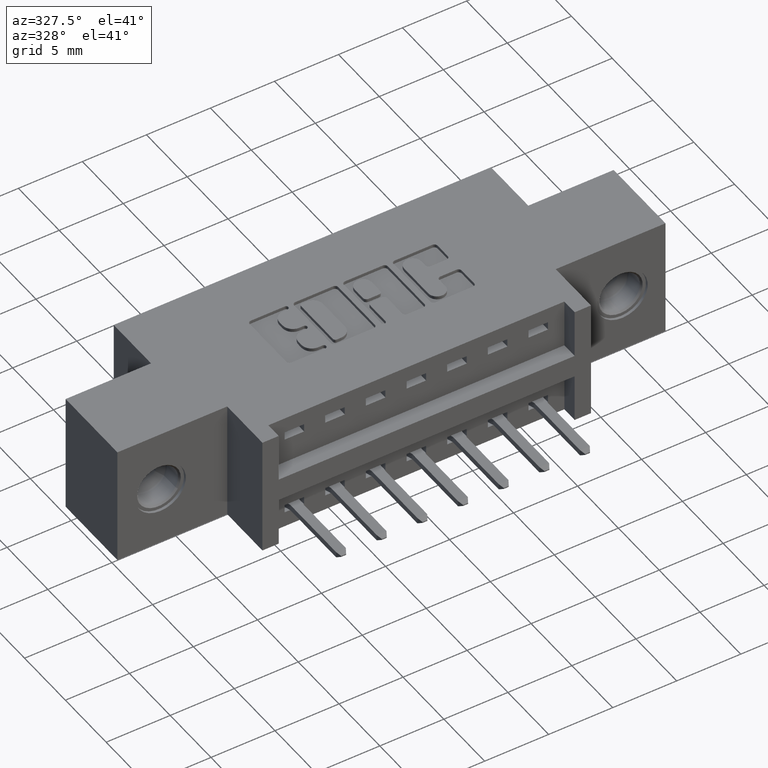
[diagram: clean part render]
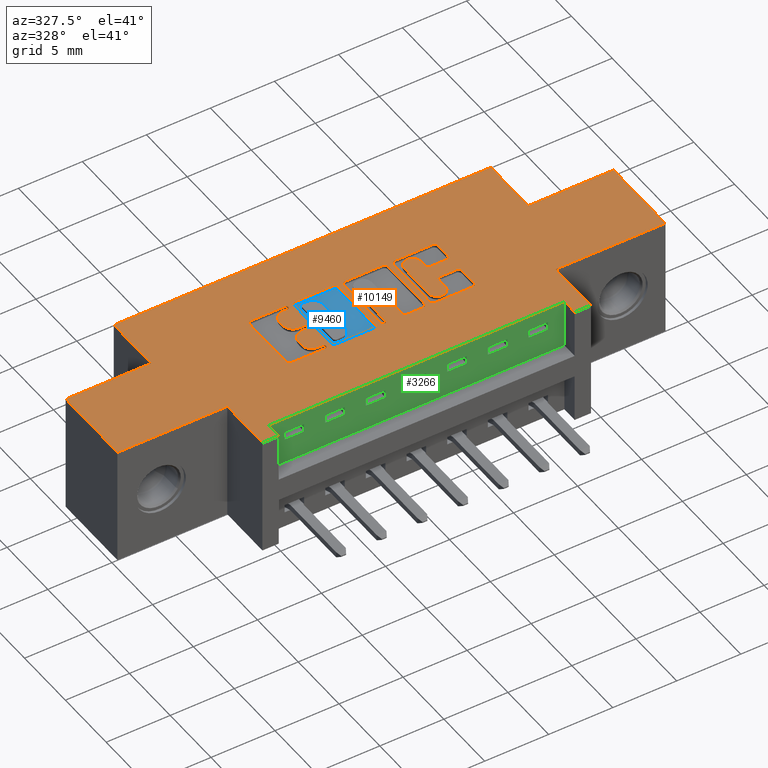
[diagram: same view with three faces highlighted in distinct colors, each labeled with its STEP entity id]
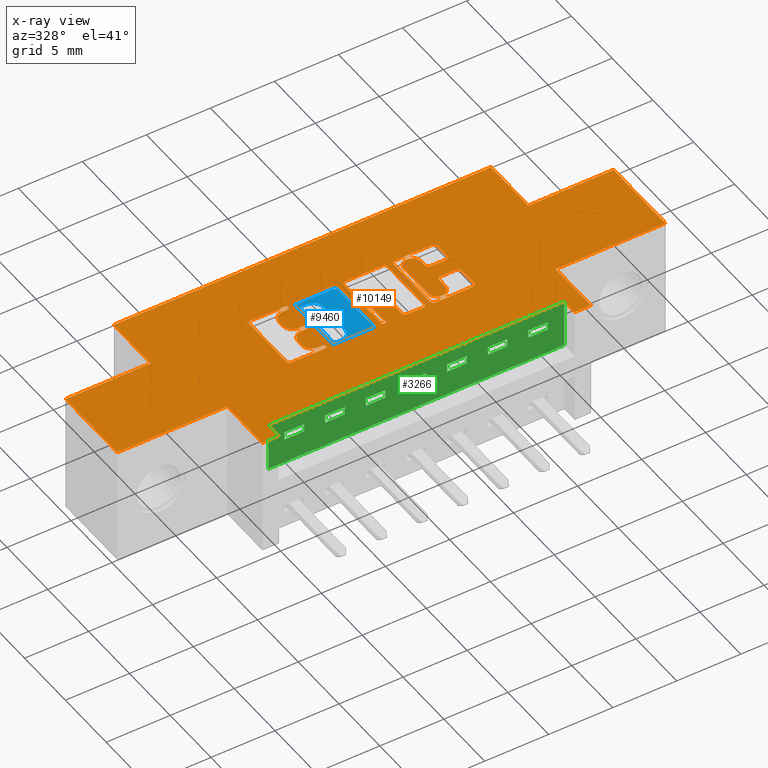
[diagram: x-ray of the same camera — body ghosted, the three highlighted faces saturated]
A machine part, auxiliary view with three faces highlighted in distinct colors.
The next image is the same camera in x-ray (body ghosted, the three faces saturated) — at least one of them is partly hidden behind the body in this view.
Their STEP definitions:

[orange] entity #10149 — the highlighted planar face has unit normal (0, 0, -1).
#1 = LINE ( 'NONE', #2490, #3083 ) ;
#30 = CARTESIAN_POINT ( 'NONE',  ( 0.7082707099630103365, 0.4133410318342099488, 0.0000000000000000000 ) ) ;
#60 = EDGE_CURVE ( 'NONE', #7519, #1078, #4399, .T. ) ;
#91 = DIRECTION ( 'NONE',  ( 1.000000000000000000, 0.0000000000000000000, 0.0000000000000000000 ) ) ;
#98 = LINE ( 'NONE', #3537, #1759 ) ;
#109 = CARTESIAN_POINT ( 'NONE',  ( 0.6756336065353515385, 0.4094147637527355554, 0.0000000000000000000 ) ) ;
#112 = CARTESIAN_POINT ( 'NONE',  ( 0.8240956183678622704, 0.2366589681657897681, 0.0000000000000000000 ) ) ;
#148 = EDGE_CURVE ( 'NONE', #2642, #5443, #1009, .T. ) ;
#151 = DIRECTION ( 'NONE',  ( 1.000000000000000000, 0.0000000000000000000, 0.0000000000000000000 ) ) ;
#154 = CARTESIAN_POINT ( 'NONE',  ( 0.0000000000000000000, 0.4199999999999999845, 0.0000000000000000000 ) ) ;
#161 = VECTOR ( 'NONE', #1113, 39.37007874015748143 ) ;
#176 = ORIENTED_EDGE ( 'NONE', *, *, #1571, .T. ) ;
#199 = CARTESIAN_POINT ( 'NONE',  ( 0.8579596805709871488, 0.2337142671046477660, 0.0000000000000000000 ) ) ;
#215 = CARTESIAN_POINT ( 'NONE',  ( 0.0000000000000000000, 0.0000000000000000000, 0.0000000000000000000 ) ) ;
#223 = ORIENTED_EDGE ( 'NONE', *, *, #4009, .F. ) ;
#231 = CARTESIAN_POINT ( 'NONE',  ( 0.6756336064154144783, 0.2405852362473100137, 0.0000000000000000000 ) ) ;
#242 = ORIENTED_EDGE ( 'NONE', *, *, #5874, .T. ) ;
#252 = CARTESIAN_POINT ( 'NONE',  ( 0.7082707099630103365, 0.4231567020380508359, 0.0000000000000000000 ) ) ;
#255 = VERTEX_POINT ( 'NONE', #8297 ) ;
#257 = EDGE_CURVE ( 'NONE', #3293, #6468, #7504, .T. ) ;
#258 = CARTESIAN_POINT ( 'NONE',  ( 0.0000000000000000000, 0.1699999999999999845, 0.0000000000000000000 ) ) ;
#279 = VERTEX_POINT ( 'NONE', #1738 ) ;
#291 = DIRECTION ( 'NONE',  ( 1.000000000000000000, 0.0000000000000000000, 0.0000000000000000000 ) ) ;
#295 = EDGE_CURVE ( 'NONE', #2501, #5923, #4294, .T. ) ;
#315 = EDGE_CURVE ( 'NONE', #3702, #3409, #1202, .T. ) ;
#318 = AXIS2_PLACEMENT_3D ( 'NONE', #2576, #6787, #91 ) ;
#324 = LINE ( 'NONE', #1156, #5711 ) ;
#329 = CARTESIAN_POINT ( 'NONE',  ( 1.139178631909972150, 0.0000000000000000000, 0.0000000000000000000 ) ) ;
#334 = ORIENTED_EDGE ( 'NONE', *, *, #4688, .F. ) ;
#335 = VERTEX_POINT ( 'NONE', #9991 ) ;
#347 = VECTOR ( 'NONE', #9155, 39.37007874015748143 ) ;
#360 = CARTESIAN_POINT ( 'NONE',  ( 1.069978156973166117, 0.3637718973050450000, 0.0000000000000000000 ) ) ;
#371 = VECTOR ( 'NONE', #4091, 39.37007874015748143 ) ;
#372 = CARTESIAN_POINT ( 'NONE',  ( 0.3875000000000001776, 0.05000000000000000278, 0.0000000000000000000 ) ) ;
#374 = LINE ( 'NONE', #426, #161 ) ;
#426 = CARTESIAN_POINT ( 'NONE',  ( 0.3875000000000001776, 0.05000000000000000278, 0.0000000000000000000 ) ) ;
#431 = CARTESIAN_POINT ( 'NONE',  ( 1.017464321382818504, 0.2668421540424528171, 0.0000000000000000000 ) ) ;
#455 = CARTESIAN_POINT ( 'NONE',  ( 1.129362961706167345, 0.3637718973050384497, 0.0000000000000000000 ) ) ;
#465 = CARTESIAN_POINT ( 'NONE',  ( 0.6984550397591694493, 0.0000000000000000000, 0.0000000000000000000 ) ) ;
#468 = CARTESIAN_POINT ( 'NONE',  ( 0.9865449602408068452, 0.4133410318342007894, 0.0000000000000000000 ) ) ;
#474 = AXIS2_PLACEMENT_3D ( 'NONE', #1892, #1732, #4997 ) ;
#476 = DIRECTION ( 'NONE',  ( -1.000000000000000000, -0.0000000000000000000, -0.0000000000000000000 ) ) ;
#482 = ORIENTED_EDGE ( 'NONE', *, *, #1196, .F. ) ;
#507 = ORIENTED_EDGE ( 'NONE', *, *, #8193, .F. ) ;
#531 = VERTEX_POINT ( 'NONE', #1406 ) ;
#535 = CARTESIAN_POINT ( 'NONE',  ( 0.0000000000000000000, 0.5999999999999999778, 0.0000000000000000000 ) ) ;
#551 = CARTESIAN_POINT ( 'NONE',  ( 1.139178631909940398, 0.2965345564089702513, 0.0000000000000000000 ) ) ;
#552 = VECTOR ( 'NONE', #10189, 39.37007874015748143 ) ;
#562 = VERTEX_POINT ( 'NONE', #6483 ) ;
#594 = CARTESIAN_POINT ( 'NONE',  ( 0.9173444853039848246, 0.3083133606535432558, 0.0000000000000000000 ) ) ;
#648 = VECTOR ( 'NONE', #476, 39.37007874015748143 ) ;
#674 = DIRECTION ( 'NONE',  ( 1.000000000000000000, 7.203446383881649836E-15, 0.0000000000000000000 ) ) ;
#793 = CARTESIAN_POINT ( 'NONE',  ( -1.123269580619646656E-14, 0.3181290308573175851, 0.0000000000000000000 ) ) ;
#798 = AXIS2_PLACEMENT_3D ( 'NONE', #7444, #3393, #2541 ) ;
#841 = DIRECTION ( 'NONE',  ( -0.0000000000000000000, 0.0000000000000000000, 1.000000000000000000 ) ) ;
#851 = CARTESIAN_POINT ( 'NONE',  ( 0.9075288151001879022, 0.3083133606535526372, 0.0000000000000000000 ) ) ;
#879 = DIRECTION ( 'NONE',  ( 1.000000000000000000, 0.0000000000000000000, 0.0000000000000000000 ) ) ;
#884 = ORIENTED_EDGE ( 'NONE', *, *, #3179, .F. ) ;
#890 = EDGE_CURVE ( 'NONE', #2868, #7199, #5688, .T. ) ;
#919 = CARTESIAN_POINT ( 'NONE',  ( 0.0000000000000000000, 0.4231567020380325173, 0.0000000000000000000 ) ) ;
#949 = CARTESIAN_POINT ( 'NONE',  ( 0.6984550397591694493, 0.2366589681657897681, 0.0000000000000000000 ) ) ;
#981 = ORIENTED_EDGE ( 'NONE', *, *, #8058, .F. ) ;
#986 = VERTEX_POINT ( 'NONE', #6766 ) ;
#997 = DIRECTION ( 'NONE',  ( 0.0000000000000000000, -1.000000000000000000, 0.0000000000000000000 ) ) ;
#1006 = DIRECTION ( 'NONE',  ( 1.000000000000000000, 0.0000000000000000000, 0.0000000000000000000 ) ) ;
#1009 = CIRCLE ( 'NONE', #4566, 0.009815670203796237128 ) ;
#1022 = VERTEX_POINT ( 'NONE', #1866 ) ;
#1050 = EDGE_CURVE ( 'NONE', #4306, #2021, #10131, .T. ) ;
#1059 = AXIS2_PLACEMENT_3D ( 'NONE', #2970, #3819, #7012 ) ;
#1076 = VECTOR ( 'NONE', #1846, 39.37007874015748143 ) ;
#1078 = VERTEX_POINT ( 'NONE', #5227 ) ;
#1081 = DIRECTION ( 'NONE',  ( -0.0000000000000000000, 0.0000000000000000000, 1.000000000000000000 ) ) ;
#1082 = VECTOR ( 'NONE', #9364, 39.37007874015748143 ) ;
#1099 = VERTEX_POINT ( 'NONE', #9434 ) ;
#1111 = VERTEX_POINT ( 'NONE', #431 ) ;
#1113 = DIRECTION ( 'NONE',  ( -0.0000000000000000000, -1.000000000000000000, -0.0000000000000000000 ) ) ;
#1136 = CIRCLE ( 'NONE', #8447, 0.006870969142663594688 ) ;
#1156 = CARTESIAN_POINT ( 'NONE',  ( 1.017464321382818504, 0.0000000000000000000, 0.0000000000000000000 ) ) ;
#1170 = VECTOR ( 'NONE', #997, 39.37007874015748143 ) ;
#1196 = EDGE_CURVE ( 'NONE', #5247, #6938, #7776, .T. ) ;
#1202 = LINE ( 'NONE', #3598, #5264 ) ;
#1204 = CARTESIAN_POINT ( 'NONE',  ( 0.8746463199174503433, 0.3083133606535453652, 0.0000000000000000000 ) ) ;
#1208 = LINE ( 'NONE', #6327, #9557 ) ;
#1212 = CARTESIAN_POINT ( 'NONE',  ( 0.6825045756779979378, 0.2337142671046477660, 0.0000000000000000000 ) ) ;
#1218 = CARTESIAN_POINT ( 'NONE',  ( 0.9767292900370116993, 0.4133410318342102263, 0.0000000000000000000 ) ) ;
#1226 = ORIENTED_EDGE ( 'NONE', *, *, #1669, .F. ) ;
#1241 = CIRCLE ( 'NONE', #6696, 0.02625691779518036367 ) ;
#1267 = VERTEX_POINT ( 'NONE', #10360 ) ;
#1271 = DIRECTION ( 'NONE',  ( -0.0000000000000000000, 0.0000000000000000000, 1.000000000000000000 ) ) ;
#1300 = AXIS2_PLACEMENT_3D ( 'NONE', #5620, #8727, #8930 ) ;
#1316 = CARTESIAN_POINT ( 'NONE',  ( 1.297500000000000098, 0.05000000000000000278, 0.0000000000000000000 ) ) ;
#1325 = VECTOR ( 'NONE', #10052, 39.37007874015748143 ) ;
#1330 = ORIENTED_EDGE ( 'NONE', *, *, #1517, .F. ) ;
#1348 = ORIENTED_EDGE ( 'NONE', *, *, #2653, .F. ) ;
#1363 = DIRECTION ( 'NONE',  ( 1.000000000000000000, 0.0000000000000000000, 0.0000000000000000000 ) ) ;
#1365 = ORIENTED_EDGE ( 'NONE', *, *, #3953, .T. ) ;
#1371 = DIRECTION ( 'NONE',  ( -0.0000000000000000000, 0.0000000000000000000, 1.000000000000000000 ) ) ;
#1376 = AXIS2_PLACEMENT_3D ( 'NONE', #535, #7021, #2777 ) ;
#1401 = DIRECTION ( 'NONE',  ( 0.0000000000000000000, 1.000000000000000000, -0.0000000000000000000 ) ) ;
#1406 = CARTESIAN_POINT ( 'NONE',  ( 0.8746463199174503433, 0.3181290308573484493, 0.0000000000000000000 ) ) ;
#1409 = LINE ( 'NONE', #9719, #6915 ) ;
#1425 = ORIENTED_EDGE ( 'NONE', *, *, #7029, .F. ) ;
#1427 = DIRECTION ( 'NONE',  ( 1.000000000000000000, 0.0000000000000000000, 0.0000000000000000000 ) ) ;
#1429 = CARTESIAN_POINT ( 'NONE',  ( 0.6621370600050842103, 0.3318709691426837138, 0.0000000000000000000 ) ) ;
#1439 = VERTEX_POINT ( 'NONE', #109 ) ;
#1459 = CIRCLE ( 'NONE', #7782, 0.009815670203840083999 ) ;
#1460 = VECTOR ( 'NONE', #4040, 39.37007874015748143 ) ;
#1477 = VERTEX_POINT ( 'NONE', #2600 ) ;
#1496 = DIRECTION ( 'NONE',  ( -0.0000000000000000000, 0.0000000000000000000, 1.000000000000000000 ) ) ;
#1515 = VECTOR ( 'NONE', #5348, 39.37007874015748143 ) ;
#1517 = EDGE_CURVE ( 'NONE', #6468, #2868, #6231, .T. ) ;
#1558 = DIRECTION ( 'NONE',  ( -0.0000000000000000000, 0.0000000000000000000, 1.000000000000000000 ) ) ;
#1571 = EDGE_CURVE ( 'NONE', #531, #2464, #3668, .T. ) ;
#1580 = CARTESIAN_POINT ( 'NONE',  ( 0.6756336065353356624, 0.2337142671046477660, 0.0000000000000000000 ) ) ;
#1604 = ORIENTED_EDGE ( 'NONE', *, *, #7646, .F. ) ;
#1624 = ORIENTED_EDGE ( 'NONE', *, *, #7115, .F. ) ;
#1641 = AXIS2_PLACEMENT_3D ( 'NONE', #1580, #4832, #9533 ) ;
#1648 = DIRECTION ( 'NONE',  ( -0.0000000000000000000, 0.0000000000000000000, 1.000000000000000000 ) ) ;
#1662 = DIRECTION ( 'NONE',  ( -1.000000000000000000, 0.0000000000000000000, 0.0000000000000000000 ) ) ;
#1669 = EDGE_CURVE ( 'NONE', #1111, #6377, #324, .T. ) ;
#1675 = VERTEX_POINT ( 'NONE', #3170 ) ;
#1685 = DIRECTION ( 'NONE',  ( 0.0000000000000000000, 1.000000000000000000, -0.0000000000000000000 ) ) ;
#1693 = LINE ( 'NONE', #8933, #9223 ) ;
#1718 = LINE ( 'NONE', #4809, #3733 ) ;
#1731 = LINE ( 'NONE', #6488, #2530 ) ;
#1732 = DIRECTION ( 'NONE',  ( -0.0000000000000000000, 0.0000000000000000000, 1.000000000000000000 ) ) ;
#1737 = EDGE_CURVE ( 'NONE', #5869, #8564, #1409, .T. ) ;
#1738 = CARTESIAN_POINT ( 'NONE',  ( 0.6307269153529098116, 0.3632811137948581681, 0.0000000000000000000 ) ) ;
#1741 = DIRECTION ( 'NONE',  ( 0.0000000000000000000, 1.000000000000000000, -0.0000000000000000000 ) ) ;
#1759 = VECTOR ( 'NONE', #151, 39.37007874015748143 ) ;
#1779 = CARTESIAN_POINT ( 'NONE',  ( 0.8648306497136470927, 0.2337142671046477660, 0.0000000000000000000 ) ) ;
#1783 = DIRECTION ( 'NONE',  ( -1.000000000000000000, -1.189163988687022540E-13, 0.0000000000000000000 ) ) ;
#1799 = DIRECTION ( 'NONE',  ( 0.0000000000000000000, 1.000000000000000000, -0.0000000000000000000 ) ) ;
#1846 = DIRECTION ( 'NONE',  ( 1.000000000000000000, 0.0000000000000000000, 0.0000000000000000000 ) ) ;
#1851 = EDGE_CURVE ( 'NONE', #5223, #6604, #1459, .T. ) ;
#1856 = AXIS2_PLACEMENT_3D ( 'NONE', #7064, #2216, #10311 ) ;
#1866 = CARTESIAN_POINT ( 'NONE',  ( 0.5615264404161155465, 0.2366589681657897681, 0.0000000000000000000 ) ) ;
#1867 = CARTESIAN_POINT ( 'NONE',  ( 0.5615264404161155465, 0.4133410318342099488, 0.0000000000000000000 ) ) ;
#1872 = VERTEX_POINT ( 'NONE', #8343 ) ;
#1889 = AXIS2_PLACEMENT_3D ( 'NONE', #10156, #4358, #3565 ) ;
#1892 = CARTESIAN_POINT ( 'NONE',  ( 0.6756336065353356624, 0.2337142671046477660, 0.0000000000000000000 ) ) ;
#1895 = EDGE_LOOP ( 'NONE', ( #334, #223, #2112, #3460, #6310, #1226, #5360, #7286, #6077, #6407, #482, #3783, #7591, #4752, #1330, #2348, #507, #981, #8044, #1425 ) ) ;
#1898 = LINE ( 'NONE', #8349, #1076 ) ;
#1908 = DIRECTION ( 'NONE',  ( 1.000000000000000000, 0.0000000000000000000, 0.0000000000000000000 ) ) ;
#1932 = VERTEX_POINT ( 'NONE', #5873 ) ;
#1951 = EDGE_CURVE ( 'NONE', #335, #10259, #6032, .T. ) ;
#1986 = EDGE_CURVE ( 'NONE', #3743, #2021, #2038, .T. ) ;
#1992 = VERTEX_POINT ( 'NONE', #5200 ) ;
#1993 = DIRECTION ( 'NONE',  ( -1.000000000000000000, 0.0000000000000000000, 0.0000000000000000000 ) ) ;
#1995 = AXIS2_PLACEMENT_3D ( 'NONE', #30, #1558, #3861 ) ;
#1996 = CARTESIAN_POINT ( 'NONE',  ( 1.069978156973166117, 0.0000000000000000000, 0.0000000000000000000 ) ) ;
#2021 = VERTEX_POINT ( 'NONE', #5155 ) ;
#2030 = VERTEX_POINT ( 'NONE', #360 ) ;
#2038 = LINE ( 'NONE', #10181, #9141 ) ;
#2070 = CARTESIAN_POINT ( 'NONE',  ( 0.6307269153529279082, 0.2719953808994902134, 0.0000000000000000000 ) ) ;
#2078 = CARTESIAN_POINT ( 'NONE',  ( 0.5615264404161155465, 0.0000000000000000000, 0.0000000000000000000 ) ) ;
#2107 = CARTESIAN_POINT ( 'NONE',  ( -0.0000000000000000000, 0.4094147637527355554, 0.0000000000000000000 ) ) ;
#2108 = ORIENTED_EDGE ( 'NONE', *, *, #7337, .F. ) ;
#2112 = ORIENTED_EDGE ( 'NONE', *, *, #2660, .F. ) ;
#2126 = DIRECTION ( 'NONE',  ( 0.0000000000000000000, -1.000000000000000000, 0.0000000000000000000 ) ) ;
#2129 = CARTESIAN_POINT ( 'NONE',  ( 1.139178631909972150, 0.4133410318341946277, 0.0000000000000000000 ) ) ;
#2150 = CIRCLE ( 'NONE', #798, 0.009815670203806345362 ) ;
#2179 = ORIENTED_EDGE ( 'NONE', *, *, #4571, .F. ) ;
#2216 = DIRECTION ( 'NONE',  ( -0.0000000000000000000, 0.0000000000000000000, 1.000000000000000000 ) ) ;
#2251 = EDGE_CURVE ( 'NONE', #7199, #1932, #2150, .T. ) ;
#2307 = EDGE_CURVE ( 'NONE', #9002, #3104, #3360, .T. ) ;
#2348 = ORIENTED_EDGE ( 'NONE', *, *, #257, .F. ) ;
#2360 = CARTESIAN_POINT ( 'NONE',  ( 0.0000000000000000000, 0.4231567020380508359, 0.0000000000000000000 ) ) ;
#2391 = CARTESIAN_POINT ( 'NONE',  ( 1.043721239177998861, 0.2668421540424528171, 0.0000000000000000000 ) ) ;
#2395 = VERTEX_POINT ( 'NONE', #9359 ) ;
#2417 = DIRECTION ( 'NONE',  ( 1.000000000000000000, 0.0000000000000000000, 0.0000000000000000000 ) ) ;
#2443 = CARTESIAN_POINT ( 'NONE',  ( 0.6756336064153889431, 0.3181290308573566095, 0.0000000000000000000 ) ) ;
#2448 = CARTESIAN_POINT ( 'NONE',  ( 1.079793827176967147, 0.2965345564089693631, 0.0000000000000000000 ) ) ;
#2464 = VERTEX_POINT ( 'NONE', #7912 ) ;
#2465 = EDGE_CURVE ( 'NONE', #1932, #5247, #8708, .T. ) ;
#2477 = DIRECTION ( 'NONE',  ( -1.000000000000000000, -0.0000000000000000000, -0.0000000000000000000 ) ) ;
#2490 = CARTESIAN_POINT ( 'NONE',  ( 0.0000000000000000000, 0.0000000000000000000, 0.0000000000000000000 ) ) ;
#2501 = VERTEX_POINT ( 'NONE', #9556 ) ;
#2512 = ORIENTED_EDGE ( 'NONE', *, *, #7521, .F. ) ;
#2530 = VECTOR ( 'NONE', #1685, 39.37007874015748143 ) ;
#2531 = VERTEX_POINT ( 'NONE', #8854 ) ;
#2541 = DIRECTION ( 'NONE',  ( 1.000000000000000000, 0.0000000000000000000, 0.0000000000000000000 ) ) ;
#2565 = ORIENTED_EDGE ( 'NONE', *, *, #7469, .T. ) ;
#2574 = VERTEX_POINT ( 'NONE', #7208 ) ;
#2576 = CARTESIAN_POINT ( 'NONE',  ( 1.079793827176977583, 0.3637718973050450000, 0.0000000000000000000 ) ) ;
#2584 = EDGE_CURVE ( 'NONE', #2681, #5194, #8797, .T. ) ;
#2595 = DIRECTION ( 'NONE',  ( 1.000000000000000000, 0.0000000000000000000, 0.0000000000000000000 ) ) ;
#2600 = CARTESIAN_POINT ( 'NONE',  ( 0.6825045756779999362, 0.4162857328953860625, 0.0000000000000000000 ) ) ;
#2608 = ORIENTED_EDGE ( 'NONE', *, *, #3596, .T. ) ;
#2609 = AXIS2_PLACEMENT_3D ( 'NONE', #2448, #1648, #7558 ) ;
#2642 = VERTEX_POINT ( 'NONE', #8227 ) ;
#2646 = EDGE_CURVE ( 'NONE', #8168, #10089, #3693, .T. ) ;
#2653 = EDGE_CURVE ( 'NONE', #3619, #4560, #9648, .T. ) ;
#2660 = EDGE_CURVE ( 'NONE', #2030, #5236, #3368, .T. ) ;
#2681 = VERTEX_POINT ( 'NONE', #252 ) ;
#2694 = VECTOR ( 'NONE', #5997, 39.37007874015748143 ) ;
#2722 = ORIENTED_EDGE ( 'NONE', *, *, #2307, .F. ) ;
#2766 = CARTESIAN_POINT ( 'NONE',  ( 1.684999999999999831, 0.5999999999999999778, 0.0000000000000000000 ) ) ;
#2777 = DIRECTION ( 'NONE',  ( -1.000000000000000000, 0.0000000000000000000, -0.0000000000000000000 ) ) ;
#2790 = VECTOR ( 'NONE', #7049, 39.37007874015748143 ) ;
#2814 = FACE_BOUND ( 'NONE', #3119, .T. ) ;
#2826 = LINE ( 'NONE', #8580, #8970 ) ;
#2863 = CARTESIAN_POINT ( 'NONE',  ( 1.003722383097458648, 0.4133410318342099488, 0.0000000000000000000 ) ) ;
#2868 = VERTEX_POINT ( 'NONE', #5244 ) ;
#2903 = CARTESIAN_POINT ( 'NONE',  ( 1.139178631909940398, 0.0000000000000000000, 0.0000000000000000000 ) ) ;
#2934 = VERTEX_POINT ( 'NONE', #2443 ) ;
#2940 = VECTOR ( 'NONE', #7548, 39.37007874015748143 ) ;
#2970 = CARTESIAN_POINT ( 'NONE',  ( 0.6621370600051097455, 0.2719953808994902134, 0.0000000000000000000 ) ) ;
#2977 = VERTEX_POINT ( 'NONE', #7458 ) ;
#2989 = EDGE_LOOP ( 'NONE', ( #9857, #9255, #10385, #884, #9525, #9403, #6120, #5352, #2179, #3094, #5428, #4213, #5911, #5736, #1624, #8530 ) ) ;
#2996 = CARTESIAN_POINT ( 'NONE',  ( 0.6984550397591694493, 0.4133410318342099488, 0.0000000000000000000 ) ) ;
#3009 = CARTESIAN_POINT ( 'NONE',  ( 0.6307269153529098116, 0.0000000000000000000, 0.0000000000000000000 ) ) ;
#3021 = CARTESIAN_POINT ( 'NONE',  ( -1.634053534412017152E-15, 0.2268432979619806333, 0.0000000000000000000 ) ) ;
#3024 = DIRECTION ( 'NONE',  ( -0.0000000000000000000, 0.0000000000000000000, 1.000000000000000000 ) ) ;
#3057 = VERTEX_POINT ( 'NONE', #9893 ) ;
#3083 = VECTOR ( 'NONE', #4776, 39.37007874015748143 ) ;
#3094 = ORIENTED_EDGE ( 'NONE', *, *, #9535, .T. ) ;
#3096 = AXIS2_PLACEMENT_3D ( 'NONE', #8462, #1271, #5382 ) ;
#3104 = VERTEX_POINT ( 'NONE', #1212 ) ;
#3119 = EDGE_LOOP ( 'NONE', ( #8927, #3193, #242, #3714, #2565, #5024, #10423, #8596, #7865, #176, #3764, #1348, #10185, #2512 ) ) ;
#3123 = CARTESIAN_POINT ( 'NONE',  ( 0.3375000000000001332, 0.0000000000000000000, 0.0000000000000000000 ) ) ;
#3150 = EDGE_CURVE ( 'NONE', #8889, #1872, #374, .T. ) ;
#3168 = DIRECTION ( 'NONE',  ( -1.000000000000000000, 0.0000000000000000000, -2.449293598294706907E-16 ) ) ;
#3169 = EDGE_CURVE ( 'NONE', #7856, #2395, #6046, .T. ) ;
#3170 = CARTESIAN_POINT ( 'NONE',  ( 0.0000000000000000000, 0.1699999999999999845, 0.0000000000000000000 ) ) ;
#3175 = VECTOR ( 'NONE', #3636, 39.37007874015748143 ) ;
#3179 = EDGE_CURVE ( 'NONE', #2574, #10456, #9164, .T. ) ;
#3185 = LINE ( 'NONE', #6443, #371 ) ;
#3189 = CARTESIAN_POINT ( 'NONE',  ( 0.0000000000000000000, 0.4231567020380508359, 0.0000000000000000000 ) ) ;
#3193 = ORIENTED_EDGE ( 'NONE', *, *, #1050, .F. ) ;
#3199 = DIRECTION ( 'NONE',  ( 1.000000000000000000, 0.0000000000000000000, 0.0000000000000000000 ) ) ;
#3213 = AXIS2_PLACEMENT_3D ( 'NONE', #4323, #5803, #9078 ) ;
#3228 = EDGE_CURVE ( 'NONE', #5027, #6377, #8150, .T. ) ;
#3262 = EDGE_CURVE ( 'NONE', #7519, #1439, #6103, .T. ) ;
#3283 = EDGE_CURVE ( 'NONE', #7579, #2501, #8613, .T. ) ;
#3293 = VERTEX_POINT ( 'NONE', #2863 ) ;
#3321 = ORIENTED_EDGE ( 'NONE', *, *, #5188, .F. ) ;
#3360 = CIRCLE ( 'NONE', #474, 0.006870969142662229460 ) ;
#3368 = CIRCLE ( 'NONE', #318, 0.009815670203811672698 ) ;
#3374 = ORIENTED_EDGE ( 'NONE', *, *, #3169, .F. ) ;
#3393 = DIRECTION ( 'NONE',  ( -0.0000000000000000000, 0.0000000000000000000, 1.000000000000000000 ) ) ;
#3409 = VERTEX_POINT ( 'NONE', #3123 ) ;
#3434 = DIRECTION ( 'NONE',  ( -1.000000000000000000, 0.0000000000000000000, 0.0000000000000000000 ) ) ;
#3435 = CARTESIAN_POINT ( 'NONE',  ( 0.7082707099629761416, 0.2366589681657897681, 0.0000000000000000000 ) ) ;
#3455 = VECTOR ( 'NONE', #2477, 39.37007874015748143 ) ;
#3460 = ORIENTED_EDGE ( 'NONE', *, *, #3541, .F. ) ;
#3462 = ORIENTED_EDGE ( 'NONE', *, *, #7395, .F. ) ;
#3489 = DIRECTION ( 'NONE',  ( -0.0000000000000000000, 0.0000000000000000000, 1.000000000000000000 ) ) ;
#3507 = ORIENTED_EDGE ( 'NONE', *, *, #7910, .F. ) ;
#3531 = ORIENTED_EDGE ( 'NONE', *, *, #2584, .F. ) ;
#3537 = CARTESIAN_POINT ( 'NONE',  ( -0.0000000000000000000, 0.2268432979619829926, 0.0000000000000000000 ) ) ;
#3541 = EDGE_CURVE ( 'NONE', #5027, #2030, #6645, .T. ) ;
#3553 = AXIS2_PLACEMENT_3D ( 'NONE', #4081, #8240, #8925 ) ;
#3565 = DIRECTION ( 'NONE',  ( 1.000000000000000000, 0.0000000000000000000, 0.0000000000000000000 ) ) ;
#3574 = CARTESIAN_POINT ( 'NONE',  ( 0.5713421106199186861, 0.2268432979619847689, 0.0000000000000000000 ) ) ;
#3591 = LINE ( 'NONE', #9358, #8812 ) ;
#3595 = DIRECTION ( 'NONE',  ( -0.0000000000000000000, 0.0000000000000000000, 1.000000000000000000 ) ) ;
#3596 = EDGE_CURVE ( 'NONE', #3057, #2395, #4271, .T. ) ;
#3598 = CARTESIAN_POINT ( 'NONE',  ( 0.3375000000000001332, 0.1699999999999999845, 0.0000000000000000000 ) ) ;
#3611 = FACE_BOUND ( 'NONE', #9506, .T. ) ;
#3615 = CIRCLE ( 'NONE', #7712, 0.009815670203804980135 ) ;
#3619 = VERTEX_POINT ( 'NONE', #4486 ) ;
#3636 = DIRECTION ( 'NONE',  ( -0.0000000000000000000, 1.000000000000000000, -0.0000000000000000000 ) ) ;
#3668 = CIRCLE ( 'NONE', #5049, 0.009815670203803203778 ) ;
#3677 = VECTOR ( 'NONE', #7128, 39.37007874015748143 ) ;
#3693 = CIRCLE ( 'NONE', #8302, 0.009815670203806754757 ) ;
#3701 = EDGE_CURVE ( 'NONE', #3057, #2934, #8712, .T. ) ;
#3702 = VERTEX_POINT ( 'NONE', #9514 ) ;
#3714 = ORIENTED_EDGE ( 'NONE', *, *, #148, .F. ) ;
#3733 = VECTOR ( 'NONE', #8853, 39.37007874015748143 ) ;
#3743 = VERTEX_POINT ( 'NONE', #8976 ) ;
#3757 = DIRECTION ( 'NONE',  ( -0.0000000000000000000, -1.000000000000000000, -0.0000000000000000000 ) ) ;
#3764 = ORIENTED_EDGE ( 'NONE', *, *, #9651, .T. ) ;
#3770 = EDGE_CURVE ( 'NONE', #279, #9812, #8022, .T. ) ;
#3775 = FACE_OUTER_BOUND ( 'NONE', #2989, .T. ) ;
#3783 = ORIENTED_EDGE ( 'NONE', *, *, #2465, .F. ) ;
#3819 = DIRECTION ( 'NONE',  ( -0.0000000000000000000, 0.0000000000000000000, 1.000000000000000000 ) ) ;
#3861 = DIRECTION ( 'NONE',  ( 1.000000000000000000, 0.0000000000000000000, 0.0000000000000000000 ) ) ;
#3897 = EDGE_CURVE ( 'NONE', #6938, #3992, #7432, .T. ) ;
#3953 = EDGE_CURVE ( 'NONE', #7856, #1992, #10228, .T. ) ;
#3962 = CARTESIAN_POINT ( 'NONE',  ( 1.297500000000000098, 0.05000000000000000278, 0.0000000000000000000 ) ) ;
#3992 = VERTEX_POINT ( 'NONE', #4657 ) ;
#4009 = EDGE_CURVE ( 'NONE', #5236, #1267, #1208, .T. ) ;
#4040 = DIRECTION ( 'NONE',  ( -1.000000000000000000, 0.0000000000000000000, 0.0000000000000000000 ) ) ;
#4079 = CARTESIAN_POINT ( 'NONE',  ( 1.129362961706132040, 0.4133410318342107259, 0.0000000000000000000 ) ) ;
#4081 = CARTESIAN_POINT ( 'NONE',  ( 0.5713421106199223498, 0.2366589681657897681, 0.0000000000000000000 ) ) ;
#4091 = DIRECTION ( 'NONE',  ( 0.0000000000000000000, -1.000000000000000000, 0.0000000000000000000 ) ) ;
#4101 = CARTESIAN_POINT ( 'NONE',  ( -0.0000000000000000000, 0.2268432979619829926, 0.0000000000000000000 ) ) ;
#4107 = VERTEX_POINT ( 'NONE', #7505 ) ;
#4139 = DIRECTION ( 'NONE',  ( 1.000000000000000000, 0.0000000000000000000, 0.0000000000000000000 ) ) ;
#4190 = CARTESIAN_POINT ( 'NONE',  ( 0.8510887114283310906, 0.4133410318342099488, 0.0000000000000000000 ) ) ;
#4213 = ORIENTED_EDGE ( 'NONE', *, *, #315, .T. ) ;
#4224 = CIRCLE ( 'NONE', #3553, 0.009815670203805868313 ) ;
#4237 = DIRECTION ( 'NONE',  ( 0.0000000000000000000, -1.000000000000000000, 0.0000000000000000000 ) ) ;
#4247 = CARTESIAN_POINT ( 'NONE',  ( 1.129362961706156687, 0.3063502266127573481, 0.0000000000000000000 ) ) ;
#4262 = VERTEX_POINT ( 'NONE', #4400 ) ;
#4267 = CARTESIAN_POINT ( 'NONE',  ( 0.6756336065353101272, 0.3250000000000201617, 0.0000000000000000000 ) ) ;
#4271 = CIRCLE ( 'NONE', #5144, 0.03141014465215623969 ) ;
#4284 = LINE ( 'NONE', #258, #3455 ) ;
#4294 = LINE ( 'NONE', #215, #347 ) ;
#4300 = DIRECTION ( 'NONE',  ( -0.0000000000000000000, 0.0000000000000000000, 1.000000000000000000 ) ) ;
#4306 = VERTEX_POINT ( 'NONE', #468 ) ;
#4323 = CARTESIAN_POINT ( 'NONE',  ( 0.6756336065353515385, 0.4162857328953860625, 0.0000000000000000000 ) ) ;
#4358 = DIRECTION ( 'NONE',  ( -0.0000000000000000000, 0.0000000000000000000, 1.000000000000000000 ) ) ;
#4360 = CIRCLE ( 'NONE', #6055, 0.009815670203796920609 ) ;
#4363 = VECTOR ( 'NONE', #7636, 39.37007874015748143 ) ;
#4399 = CIRCLE ( 'NONE', #1856, 0.03141014465221578927 ) ;
#4400 = CARTESIAN_POINT ( 'NONE',  ( 1.069978156973179217, 0.2668421540424528171, 0.0000000000000000000 ) ) ;
#4401 = DIRECTION ( 'NONE',  ( -0.0000000000000000000, 0.0000000000000000000, 1.000000000000000000 ) ) ;
#4413 = FACE_BOUND ( 'NONE', #10040, .T. ) ;
#4418 = EDGE_CURVE ( 'NONE', #10456, #562, #10350, .T. ) ;
#4486 = CARTESIAN_POINT ( 'NONE',  ( 0.8510887114283310906, 0.2337142671046477660, 0.0000000000000000000 ) ) ;
#4551 = DIRECTION ( 'NONE',  ( -1.000000000000000000, 0.0000000000000000000, 0.0000000000000000000 ) ) ;
#4554 = VECTOR ( 'NONE', #1799, 39.37007874015748143 ) ;
#4559 = CIRCLE ( 'NONE', #7898, 0.009815670203796511215 ) ;
#4560 = VERTEX_POINT ( 'NONE', #1779 ) ;
#4563 = FACE_BOUND ( 'NONE', #1895, .T. ) ;
#4566 = AXIS2_PLACEMENT_3D ( 'NONE', #9570, #841, #4139 ) ;
#4571 = EDGE_CURVE ( 'NONE', #7922, #4107, #7494, .T. ) ;
#4582 = AXIS2_PLACEMENT_3D ( 'NONE', #5548, #1496, #7370 ) ;
#4626 = EDGE_CURVE ( 'NONE', #3702, #1675, #4284, .T. ) ;
#4629 = CARTESIAN_POINT ( 'NONE',  ( 0.8648306497136470927, 0.0000000000000000000, 0.0000000000000000000 ) ) ;
#4652 = CARTESIAN_POINT ( 'NONE',  ( 0.3875000000000001776, 0.05000000000000000278, 0.0000000000000000000 ) ) ;
#4657 = CARTESIAN_POINT ( 'NONE',  ( 1.079793827176967147, 0.3063502266127573481, 0.0000000000000000000 ) ) ;
#4688 = EDGE_CURVE ( 'NONE', #1267, #1099, #3615, .T. ) ;
#4694 = DIRECTION ( 'NONE',  ( -0.0000000000000000000, 0.0000000000000000000, 1.000000000000000000 ) ) ;
#4709 = CARTESIAN_POINT ( 'NONE',  ( 1.043721239177992421, 0.3831578459575294415, 0.0000000000000000000 ) ) ;
#4720 = VECTOR ( 'NONE', #8721, 39.37007874015748143 ) ;
#4752 = ORIENTED_EDGE ( 'NONE', *, *, #890, .F. ) ;
#4755 = VERTEX_POINT ( 'NONE', #9356 ) ;
#4756 = CARTESIAN_POINT ( 'NONE',  ( 0.6756336064154144783, 0.2268432979619855183, 0.0000000000000000000 ) ) ;
#4764 = VECTOR ( 'NONE', #5541, 39.37007874015748143 ) ;
#4776 = DIRECTION ( 'NONE',  ( 1.000000000000000000, 0.0000000000000000000, 0.0000000000000000000 ) ) ;
#4800 = ORIENTED_EDGE ( 'NONE', *, *, #60, .T. ) ;
#4809 = CARTESIAN_POINT ( 'NONE',  ( 1.684999999999999831, 0.4199999999999999845, 0.0000000000000000000 ) ) ;
#4823 = VERTEX_POINT ( 'NONE', #9553 ) ;
#4832 = DIRECTION ( 'NONE',  ( -0.0000000000000000000, 0.0000000000000000000, 1.000000000000000000 ) ) ;
#4896 = EDGE_CURVE ( 'NONE', #7479, #2531, #7487, .T. ) ;
#4982 = CARTESIAN_POINT ( 'NONE',  ( 0.5713421106199382260, 0.4231567020380325173, 0.0000000000000000000 ) ) ;
#4997 = DIRECTION ( 'NONE',  ( 1.000000000000000000, 0.0000000000000000000, 0.0000000000000000000 ) ) ;
#5024 = ORIENTED_EDGE ( 'NONE', *, *, #10119, .F. ) ;
#5027 = VERTEX_POINT ( 'NONE', #9081 ) ;
#5028 = LINE ( 'NONE', #919, #8635 ) ;
#5048 = CARTESIAN_POINT ( 'NONE',  ( 0.6621370600050842103, 0.2867188862052003628, 0.0000000000000000000 ) ) ;
#5049 = AXIS2_PLACEMENT_3D ( 'NONE', #1204, #4401, #7612 ) ;
#5089 = DIRECTION ( 'NONE',  ( 1.000000000000000000, 0.0000000000000000000, 0.0000000000000000000 ) ) ;
#5144 = AXIS2_PLACEMENT_3D ( 'NONE', #5048, #3595, #2595 ) ;
#5147 = CARTESIAN_POINT ( 'NONE',  ( 0.0000000000000000000, 0.4199999999999999845, 0.0000000000000000000 ) ) ;
#5155 = CARTESIAN_POINT ( 'NONE',  ( 0.9767292900370140307, 0.4231567020380064270, 0.0000000000000000000 ) ) ;
#5170 = LINE ( 'NONE', #329, #2694 ) ;
#5188 = EDGE_CURVE ( 'NONE', #10110, #1022, #7798, .T. ) ;
#5194 = VERTEX_POINT ( 'NONE', #2996 ) ;
#5199 = DIRECTION ( 'NONE',  ( 1.000000000000000000, 0.0000000000000000000, 0.0000000000000000000 ) ) ;
#5200 = CARTESIAN_POINT ( 'NONE',  ( 0.6621370600051097455, 0.2405852362473084038, 0.0000000000000000000 ) ) ;
#5205 = DIRECTION ( 'NONE',  ( -0.0000000000000000000, 0.0000000000000000000, 1.000000000000000000 ) ) ;
#5220 = CARTESIAN_POINT ( 'NONE',  ( 0.6307269153529279082, 0.0000000000000000000, 0.0000000000000000000 ) ) ;
#5223 = VERTEX_POINT ( 'NONE', #2129 ) ;
#5227 = CARTESIAN_POINT ( 'NONE',  ( 0.6307269153529098116, 0.3780046191005195788, 0.0000000000000000000 ) ) ;
#5236 = VERTEX_POINT ( 'NONE', #7084 ) ;
#5242 = VERTEX_POINT ( 'NONE', #9636 ) ;
#5244 = CARTESIAN_POINT ( 'NONE',  ( 1.013538053301265451, 0.2268432979619829926, 0.0000000000000000000 ) ) ;
#5247 = VERTEX_POINT ( 'NONE', #551 ) ;
#5264 = VECTOR ( 'NONE', #3757, 39.37007874015748143 ) ;
#5282 = CARTESIAN_POINT ( 'NONE',  ( 1.129362961706168456, 0.4231567020380508359, 0.0000000000000000000 ) ) ;
#5348 = DIRECTION ( 'NONE',  ( 0.0000000000000000000, -1.000000000000000000, 0.0000000000000000000 ) ) ;
#5352 = ORIENTED_EDGE ( 'NONE', *, *, #6984, .F. ) ;
#5356 = LINE ( 'NONE', #8537, #8069 ) ;
#5360 = ORIENTED_EDGE ( 'NONE', *, *, #8646, .T. ) ;
#5382 = DIRECTION ( 'NONE',  ( 1.000000000000000000, 0.0000000000000000000, 0.0000000000000000000 ) ) ;
#5388 = DIRECTION ( 'NONE',  ( 1.000000000000000000, 0.0000000000000000000, 0.0000000000000000000 ) ) ;
#5396 = DIRECTION ( 'NONE',  ( 0.0000000000000000000, -1.000000000000000000, 0.0000000000000000000 ) ) ;
#5416 = DIRECTION ( 'NONE',  ( -0.0000000000000000000, 0.0000000000000000000, 1.000000000000000000 ) ) ;
#5428 = ORIENTED_EDGE ( 'NONE', *, *, #4626, .F. ) ;
#5443 = VERTEX_POINT ( 'NONE', #10485 ) ;
#5474 = CIRCLE ( 'NONE', #3096, 0.009815670203841039831 ) ;
#5483 = CARTESIAN_POINT ( 'NONE',  ( 0.9075288151001883463, 0.3181290308573496151, 0.0000000000000000000 ) ) ;
#5485 = ORIENTED_EDGE ( 'NONE', *, *, #9593, .F. ) ;
#5541 = DIRECTION ( 'NONE',  ( -0.0000000000000000000, -1.000000000000000000, -0.0000000000000000000 ) ) ;
#5548 = CARTESIAN_POINT ( 'NONE',  ( 0.6756336065353101272, 0.3250000000000201617, 0.0000000000000000000 ) ) ;
#5566 = AXIS2_PLACEMENT_3D ( 'NONE', #112, #4300, #1006 ) ;
#5574 = VECTOR ( 'NONE', #10355, 39.37007874015748143 ) ;
#5618 = CIRCLE ( 'NONE', #1889, 0.009815670203803203778 ) ;
#5620 = CARTESIAN_POINT ( 'NONE',  ( 1.129362961706153135, 0.2965345564089702513, 0.0000000000000000000 ) ) ;
#5688 = LINE ( 'NONE', #4101, #10459 ) ;
#5711 = VECTOR ( 'NONE', #6857, 39.37007874015748143 ) ;
#5736 = ORIENTED_EDGE ( 'NONE', *, *, #3150, .F. ) ;
#5750 = DIRECTION ( 'NONE',  ( 1.000000000000000000, 0.0000000000000000000, 0.0000000000000000000 ) ) ;
#5803 = DIRECTION ( 'NONE',  ( -0.0000000000000000000, 0.0000000000000000000, 1.000000000000000000 ) ) ;
#5808 = VECTOR ( 'NONE', #3168, 39.37007874015748143 ) ;
#5822 = LINE ( 'NONE', #9098, #7119 ) ;
#5838 = ORIENTED_EDGE ( 'NONE', *, *, #10230, .F. ) ;
#5851 = EDGE_CURVE ( 'NONE', #3619, #6921, #1693, .T. ) ;
#5869 = VERTEX_POINT ( 'NONE', #8248 ) ;
#5873 = CARTESIAN_POINT ( 'NONE',  ( 1.139178631909940398, 0.2366589681657828015, 0.0000000000000000000 ) ) ;
#5874 = EDGE_CURVE ( 'NONE', #4306, #5443, #3185, .T. ) ;
#5880 = CARTESIAN_POINT ( 'NONE',  ( 1.003722383097458648, 0.0000000000000000000, 0.0000000000000000000 ) ) ;
#5884 = EDGE_CURVE ( 'NONE', #3409, #1872, #1, .T. ) ;
#5911 = ORIENTED_EDGE ( 'NONE', *, *, #5884, .T. ) ;
#5913 = CARTESIAN_POINT ( 'NONE',  ( 0.5713421106199382260, 0.4133410318342099488, 0.0000000000000000000 ) ) ;
#5923 = VERTEX_POINT ( 'NONE', #7227 ) ;
#5962 = CARTESIAN_POINT ( 'NONE',  ( 1.017464321382818504, 0.3831578459575294415, 0.0000000000000000000 ) ) ;
#5963 = VECTOR ( 'NONE', #4237, 39.37007874015748143 ) ;
#5993 = DIRECTION ( 'NONE',  ( 1.000000000000000000, 0.0000000000000000000, 0.0000000000000000000 ) ) ;
#5997 = DIRECTION ( 'NONE',  ( 0.0000000000000000000, 1.000000000000000000, -0.0000000000000000000 ) ) ;
#6027 = ORIENTED_EDGE ( 'NONE', *, *, #8869, .F. ) ;
#6032 = LINE ( 'NONE', #6140, #3175 ) ;
#6033 = CARTESIAN_POINT ( 'NONE',  ( 0.8609043816321275688, 0.4133410318342099488, 0.0000000000000000000 ) ) ;
#6046 = LINE ( 'NONE', #5220, #4554 ) ;
#6055 = AXIS2_PLACEMENT_3D ( 'NONE', #851, #9578, #10416 ) ;
#6077 = ORIENTED_EDGE ( 'NONE', *, *, #8699, .F. ) ;
#6083 = VECTOR ( 'NONE', #9321, 39.37007874015748143 ) ;
#6095 = CIRCLE ( 'NONE', #3213, 0.006870969142648433205 ) ;
#6103 = LINE ( 'NONE', #2107, #4720 ) ;
#6120 = ORIENTED_EDGE ( 'NONE', *, *, #8679, .F. ) ;
#6140 = CARTESIAN_POINT ( 'NONE',  ( 1.422499999999999876, 0.4199999999999999845, 0.0000000000000000000 ) ) ;
#6144 = CARTESIAN_POINT ( 'NONE',  ( 0.6825045756779737349, 0.3250000000000201617, 0.0000000000000000000 ) ) ;
#6221 = VERTEX_POINT ( 'NONE', #8953 ) ;
#6231 = CIRCLE ( 'NONE', #9620, 0.009815670203806754757 ) ;
#6268 = CARTESIAN_POINT ( 'NONE',  ( -0.0000000000000000000, 0.3181290308573566095, 0.0000000000000000000 ) ) ;
#6274 = EDGE_CURVE ( 'NONE', #562, #5923, #6303, .T. ) ;
#6303 = LINE ( 'NONE', #7944, #4764 ) ;
#6310 = ORIENTED_EDGE ( 'NONE', *, *, #3228, .T. ) ;
#6324 = AXIS2_PLACEMENT_3D ( 'NONE', #8073, #4694, #2417 ) ;
#6327 = CARTESIAN_POINT ( 'NONE',  ( -0.0000000000000000000, 0.3539562271012334227, 0.0000000000000000000 ) ) ;
#6377 = VERTEX_POINT ( 'NONE', #5962 ) ;
#6407 = ORIENTED_EDGE ( 'NONE', *, *, #3897, .F. ) ;
#6443 = CARTESIAN_POINT ( 'NONE',  ( 0.9865449602408068452, 0.0000000000000000000, 0.0000000000000000000 ) ) ;
#6468 = VERTEX_POINT ( 'NONE', #9798 ) ;
#6483 = CARTESIAN_POINT ( 'NONE',  ( 1.347500000000000142, 0.1699999999999999845, 1.236893267138826712E-16 ) ) ;
#6488 = CARTESIAN_POINT ( 'NONE',  ( 0.9173444853039848246, 0.0000000000000000000, 0.0000000000000000000 ) ) ;
#6557 = CARTESIAN_POINT ( 'NONE',  ( 0.7082707099629761416, 0.2268432979619829926, 0.0000000000000000000 ) ) ;
#6566 = DIRECTION ( 'NONE',  ( -0.0000000000000000000, 0.0000000000000000000, 1.000000000000000000 ) ) ;
#6604 = VERTEX_POINT ( 'NONE', #5282 ) ;
#6635 = CARTESIAN_POINT ( 'NONE',  ( 0.0000000000000000000, 0.3063502266127573481, 0.0000000000000000000 ) ) ;
#6645 = LINE ( 'NONE', #1996, #5963 ) ;
#6666 = VERTEX_POINT ( 'NONE', #5483 ) ;
#6696 = AXIS2_PLACEMENT_3D ( 'NONE', #2391, #8046, #1427 ) ;
#6766 = CARTESIAN_POINT ( 'NONE',  ( 0.6756336065353515385, 0.4231567020380325173, 0.0000000000000000000 ) ) ;
#6768 = CIRCLE ( 'NONE', #5566, 0.009815670203806754757 ) ;
#6781 = EDGE_CURVE ( 'NONE', #3104, #10053, #8287, .T. ) ;
#6787 = DIRECTION ( 'NONE',  ( -0.0000000000000000000, 0.0000000000000000000, 1.000000000000000000 ) ) ;
#6824 = PLANE ( 'NONE',  #1376 ) ;
#6829 = ORIENTED_EDGE ( 'NONE', *, *, #7194, .F. ) ;
#6857 = DIRECTION ( 'NONE',  ( 0.0000000000000000000, 1.000000000000000000, -0.0000000000000000000 ) ) ;
#6904 = EDGE_CURVE ( 'NONE', #5242, #5869, #6768, .T. ) ;
#6906 = DIRECTION ( 'NONE',  ( 1.000000000000000000, 0.0000000000000000000, 0.0000000000000000000 ) ) ;
#6915 = VECTOR ( 'NONE', #8760, 39.37007874015748143 ) ;
#6921 = VERTEX_POINT ( 'NONE', #4190 ) ;
#6938 = VERTEX_POINT ( 'NONE', #4247 ) ;
#6984 = EDGE_CURVE ( 'NONE', #4107, #255, #9320, .T. ) ;
#7011 = LINE ( 'NONE', #3021, #9507 ) ;
#7012 = DIRECTION ( 'NONE',  ( 1.000000000000000000, 0.0000000000000000000, 0.0000000000000000000 ) ) ;
#7021 = DIRECTION ( 'NONE',  ( 0.0000000000000000000, 0.0000000000000000000, -1.000000000000000000 ) ) ;
#7029 = EDGE_CURVE ( 'NONE', #1099, #5223, #5170, .T. ) ;
#7049 = DIRECTION ( 'NONE',  ( 0.0000000000000000000, 1.000000000000000000, -0.0000000000000000000 ) ) ;
#7064 = CARTESIAN_POINT ( 'NONE',  ( 0.6621370600051255106, 0.3780046191005195788, 0.0000000000000000000 ) ) ;
#7084 = CARTESIAN_POINT ( 'NONE',  ( 1.079793827176977583, 0.3539562271012334227, 0.0000000000000000000 ) ) ;
#7087 = VECTOR ( 'NONE', #2126, 39.37007874015748143 ) ;
#7115 = EDGE_CURVE ( 'NONE', #7579, #8889, #7670, .T. ) ;
#7119 = VECTOR ( 'NONE', #1783, 39.37007874015748143 ) ;
#7127 = VECTOR ( 'NONE', #3434, 39.37007874015748143 ) ;
#7128 = DIRECTION ( 'NONE',  ( -1.000000000000000000, -3.530861605407645268E-14, 0.0000000000000000000 ) ) ;
#7194 = EDGE_CURVE ( 'NONE', #9682, #9002, #7011, .T. ) ;
#7199 = VERTEX_POINT ( 'NONE', #10253 ) ;
#7208 = CARTESIAN_POINT ( 'NONE',  ( 1.684999999999999831, 0.4199999999999999845, 0.0000000000000000000 ) ) ;
#7227 = CARTESIAN_POINT ( 'NONE',  ( 1.347500000000000142, 0.0000000000000000000, 0.0000000000000000000 ) ) ;
#7256 = AXIS2_PLACEMENT_3D ( 'NONE', #9442, #9970, #5388 ) ;
#7265 = ORIENTED_EDGE ( 'NONE', *, *, #8286, .F. ) ;
#7285 = LINE ( 'NONE', #793, #3677 ) ;
#7286 = ORIENTED_EDGE ( 'NONE', *, *, #9609, .F. ) ;
#7328 = DIRECTION ( 'NONE',  ( 1.000000000000000000, 0.0000000000000000000, 0.0000000000000000000 ) ) ;
#7337 = EDGE_CURVE ( 'NONE', #1022, #9682, #4224, .T. ) ;
#7355 = EDGE_CURVE ( 'NONE', #2977, #7927, #1731, .T. ) ;
#7370 = DIRECTION ( 'NONE',  ( 1.000000000000000000, 0.0000000000000000000, 0.0000000000000000000 ) ) ;
#7374 = DIRECTION ( 'NONE',  ( -0.0000000000000000000, 0.0000000000000000000, 1.000000000000000000 ) ) ;
#7395 = EDGE_CURVE ( 'NONE', #10053, #1992, #5822, .T. ) ;
#7432 = LINE ( 'NONE', #6635, #8197 ) ;
#7433 = ORIENTED_EDGE ( 'NONE', *, *, #7741, .F. ) ;
#7444 = CARTESIAN_POINT ( 'NONE',  ( 1.129362961706134483, 0.2366589681657897681, 0.0000000000000000000 ) ) ;
#7458 = CARTESIAN_POINT ( 'NONE',  ( 0.9173444853039848246, 0.2366589681657876310, 0.0000000000000000000 ) ) ;
#7469 = EDGE_CURVE ( 'NONE', #2642, #4823, #3591, .T. ) ;
#7479 = VERTEX_POINT ( 'NONE', #6144 ) ;
#7487 = CIRCLE ( 'NONE', #4582, 0.006870969142663594688 ) ;
#7494 = LINE ( 'NONE', #154, #2940 ) ;
#7504 = LINE ( 'NONE', #5880, #1170 ) ;
#7505 = CARTESIAN_POINT ( 'NONE',  ( 0.2625000000000000111, 0.4199999999999999845, 0.0000000000000000000 ) ) ;
#7519 = VERTEX_POINT ( 'NONE', #8345 ) ;
#7521 = EDGE_CURVE ( 'NONE', #3743, #6921, #4559, .T. ) ;
#7548 = DIRECTION ( 'NONE',  ( 1.000000000000000000, 0.0000000000000000000, 0.0000000000000000000 ) ) ;
#7558 = DIRECTION ( 'NONE',  ( 1.000000000000000000, 0.0000000000000000000, 0.0000000000000000000 ) ) ;
#7565 = ORIENTED_EDGE ( 'NONE', *, *, #9049, .F. ) ;
#7579 = VERTEX_POINT ( 'NONE', #3962 ) ;
#7591 = ORIENTED_EDGE ( 'NONE', *, *, #2251, .F. ) ;
#7612 = DIRECTION ( 'NONE',  ( 1.000000000000000000, 0.0000000000000000000, 0.0000000000000000000 ) ) ;
#7627 = CARTESIAN_POINT ( 'NONE',  ( 0.8240956183678962432, 0.4231567020380508359, 0.0000000000000000000 ) ) ;
#7636 = DIRECTION ( 'NONE',  ( -0.0000000000000000000, -1.000000000000000000, -0.0000000000000000000 ) ) ;
#7646 = EDGE_CURVE ( 'NONE', #279, #1078, #9555, .T. ) ;
#7670 = LINE ( 'NONE', #372, #648 ) ;
#7673 = VERTEX_POINT ( 'NONE', #4982 ) ;
#7712 = AXIS2_PLACEMENT_3D ( 'NONE', #455, #7757, #5199 ) ;
#7730 = DIRECTION ( 'NONE',  ( 1.000000000000000000, 0.0000000000000000000, 0.0000000000000000000 ) ) ;
#7741 = EDGE_CURVE ( 'NONE', #10200, #2681, #8971, .T. ) ;
#7757 = DIRECTION ( 'NONE',  ( -0.0000000000000000000, 0.0000000000000000000, 1.000000000000000000 ) ) ;
#7764 = LINE ( 'NONE', #465, #1082 ) ;
#7770 = EDGE_CURVE ( 'NONE', #335, #2574, #1718, .T. ) ;
#7776 = CIRCLE ( 'NONE', #1300, 0.009815670203787221770 ) ;
#7782 = AXIS2_PLACEMENT_3D ( 'NONE', #4079, #3489, #7328 ) ;
#7798 = LINE ( 'NONE', #2078, #1515 ) ;
#7856 = VERTEX_POINT ( 'NONE', #2070 ) ;
#7865 = ORIENTED_EDGE ( 'NONE', *, *, #8007, .T. ) ;
#7898 = AXIS2_PLACEMENT_3D ( 'NONE', #6033, #5205, #8439 ) ;
#7910 = EDGE_CURVE ( 'NONE', #1477, #986, #10479, .T. ) ;
#7912 = CARTESIAN_POINT ( 'NONE',  ( 0.8648306497136470927, 0.3083133606535453652, 0.0000000000000000000 ) ) ;
#7922 = VERTEX_POINT ( 'NONE', #5147 ) ;
#7927 = VERTEX_POINT ( 'NONE', #594 ) ;
#7940 = ORIENTED_EDGE ( 'NONE', *, *, #9237, .F. ) ;
#7944 = CARTESIAN_POINT ( 'NONE',  ( 1.347500000000000142, 0.1699999999999999845, 1.236893267138826712E-16 ) ) ;
#7955 = AXIS2_PLACEMENT_3D ( 'NONE', #199, #7374, #5089 ) ;
#8007 = EDGE_CURVE ( 'NONE', #6666, #531, #7285, .T. ) ;
#8021 = EDGE_CURVE ( 'NONE', #7927, #6666, #4360, .T. ) ;
#8022 = CIRCLE ( 'NONE', #6324, 0.03141014465217440571 ) ;
#8044 = ORIENTED_EDGE ( 'NONE', *, *, #1851, .F. ) ;
#8046 = DIRECTION ( 'NONE',  ( -0.0000000000000000000, 0.0000000000000000000, 1.000000000000000000 ) ) ;
#8058 = EDGE_CURVE ( 'NONE', #6604, #4755, #10471, .T. ) ;
#8069 = VECTOR ( 'NONE', #8590, 39.37007874015748143 ) ;
#8073 = CARTESIAN_POINT ( 'NONE',  ( 0.6621370600050842103, 0.3632811137948581681, 0.0000000000000000000 ) ) ;
#8095 = ORIENTED_EDGE ( 'NONE', *, *, #3262, .F. ) ;
#8146 = CARTESIAN_POINT ( 'NONE',  ( 1.684999999999999831, 0.1699999999999999845, 2.063529856563289899E-16 ) ) ;
#8150 = CIRCLE ( 'NONE', #10166, 0.02625691779517380642 ) ;
#8168 = VERTEX_POINT ( 'NONE', #949 ) ;
#8193 = EDGE_CURVE ( 'NONE', #4755, #3293, #8968, .T. ) ;
#8197 = VECTOR ( 'NONE', #4551, 39.37007874015748143 ) ;
#8227 = CARTESIAN_POINT ( 'NONE',  ( 0.9767292900370107001, 0.2268432979619844359, 0.0000000000000000000 ) ) ;
#8240 = DIRECTION ( 'NONE',  ( -0.0000000000000000000, 0.0000000000000000000, 1.000000000000000000 ) ) ;
#8248 = CARTESIAN_POINT ( 'NONE',  ( 0.8339112885716691848, 0.2366589681657897681, 0.0000000000000000000 ) ) ;
#8255 = ORIENTED_EDGE ( 'NONE', *, *, #2646, .F. ) ;
#8286 = EDGE_CURVE ( 'NONE', #986, #7673, #5028, .T. ) ;
#8287 = CIRCLE ( 'NONE', #1641, 0.006870969142662229460 ) ;
#8297 = CARTESIAN_POINT ( 'NONE',  ( 0.2625000000000000111, 0.5999999999999999778, 0.0000000000000000000 ) ) ;
#8302 = AXIS2_PLACEMENT_3D ( 'NONE', #3435, #9868, #879 ) ;
#8305 = DIRECTION ( 'NONE',  ( -0.0000000000000000000, 0.0000000000000000000, 1.000000000000000000 ) ) ;
#8343 = CARTESIAN_POINT ( 'NONE',  ( 0.3875000000000001776, 0.0000000000000000000, 0.0000000000000000000 ) ) ;
#8345 = CARTESIAN_POINT ( 'NONE',  ( 0.6621370600051255106, 0.4094147637527355554, 0.0000000000000000000 ) ) ;
#8349 = CARTESIAN_POINT ( 'NONE',  ( 0.0000000000000000000, 0.5999999999999999778, 0.0000000000000000000 ) ) ;
#8439 = DIRECTION ( 'NONE',  ( 1.000000000000000000, 0.0000000000000000000, 0.0000000000000000000 ) ) ;
#8447 = AXIS2_PLACEMENT_3D ( 'NONE', #4267, #6566, #5750 ) ;
#8462 = CARTESIAN_POINT ( 'NONE',  ( 0.8240956183678280755, 0.4133410318342097822, 0.0000000000000000000 ) ) ;
#8530 = ORIENTED_EDGE ( 'NONE', *, *, #3283, .T. ) ;
#8537 = CARTESIAN_POINT ( 'NONE',  ( 0.0000000000000000000, 0.3318709691426837138, 0.0000000000000000000 ) ) ;
#8564 = VERTEX_POINT ( 'NONE', #9494 ) ;
#8580 = CARTESIAN_POINT ( 'NONE',  ( 1.069978156973179217, 0.0000000000000000000, 0.0000000000000000000 ) ) ;
#8590 = DIRECTION ( 'NONE',  ( -1.000000000000000000, 0.0000000000000000000, 0.0000000000000000000 ) ) ;
#8596 = ORIENTED_EDGE ( 'NONE', *, *, #8021, .T. ) ;
#8613 = LINE ( 'NONE', #1316, #5574 ) ;
#8626 = AXIS2_PLACEMENT_3D ( 'NONE', #5913, #1081, #291 ) ;
#8635 = VECTOR ( 'NONE', #1662, 39.37007874015748143 ) ;
#8646 = EDGE_CURVE ( 'NONE', #1111, #4262, #1241, .T. ) ;
#8679 = EDGE_CURVE ( 'NONE', #255, #10259, #1898, .T. ) ;
#8699 = EDGE_CURVE ( 'NONE', #3992, #6221, #9079, .T. ) ;
#8708 = LINE ( 'NONE', #2903, #9988 ) ;
#8712 = LINE ( 'NONE', #6268, #552 ) ;
#8721 = DIRECTION ( 'NONE',  ( 1.000000000000000000, 0.0000000000000000000, 0.0000000000000000000 ) ) ;
#8727 = DIRECTION ( 'NONE',  ( -0.0000000000000000000, 0.0000000000000000000, 1.000000000000000000 ) ) ;
#8760 = DIRECTION ( 'NONE',  ( 0.0000000000000000000, 1.000000000000000000, -0.0000000000000000000 ) ) ;
#8797 = CIRCLE ( 'NONE', #1995, 0.009815670203840902788 ) ;
#8812 = VECTOR ( 'NONE', #1993, 39.37007874015748143 ) ;
#8853 = DIRECTION ( 'NONE',  ( 1.000000000000000000, -0.0000000000000000000, -0.0000000000000000000 ) ) ;
#8854 = CARTESIAN_POINT ( 'NONE',  ( 0.6756336065353101272, 0.3318709691426837138, 0.0000000000000000000 ) ) ;
#8869 = EDGE_CURVE ( 'NONE', #5194, #8168, #7764, .T. ) ;
#8889 = VERTEX_POINT ( 'NONE', #4652 ) ;
#8924 = ORIENTED_EDGE ( 'NONE', *, *, #9603, .F. ) ;
#8925 = DIRECTION ( 'NONE',  ( 1.000000000000000000, 0.0000000000000000000, 0.0000000000000000000 ) ) ;
#8927 = ORIENTED_EDGE ( 'NONE', *, *, #1986, .T. ) ;
#8930 = DIRECTION ( 'NONE',  ( 1.000000000000000000, 0.0000000000000000000, 0.0000000000000000000 ) ) ;
#8933 = CARTESIAN_POINT ( 'NONE',  ( 0.8510887114283310906, 0.0000000000000000000, 0.0000000000000000000 ) ) ;
#8953 = CARTESIAN_POINT ( 'NONE',  ( 1.069978156973179217, 0.2965345564089684749, 0.0000000000000000000 ) ) ;
#8968 = CIRCLE ( 'NONE', #9811, 0.009815670203840902788 ) ;
#8970 = VECTOR ( 'NONE', #5396, 39.37007874015748143 ) ;
#8971 = LINE ( 'NONE', #2360, #7127 ) ;
#8976 = CARTESIAN_POINT ( 'NONE',  ( 0.8609043816321275688, 0.4231567020380064270, 0.0000000000000000000 ) ) ;
#9002 = VERTEX_POINT ( 'NONE', #4756 ) ;
#9020 = CARTESIAN_POINT ( 'NONE',  ( 0.0000000000000000000, 0.5999999999999999778, 0.0000000000000000000 ) ) ;
#9049 = EDGE_CURVE ( 'NONE', #10089, #5242, #98, .T. ) ;
#9078 = DIRECTION ( 'NONE',  ( 1.000000000000000000, 0.0000000000000000000, 0.0000000000000000000 ) ) ;
#9079 = CIRCLE ( 'NONE', #2609, 0.009815670203788042295 ) ;
#9081 = CARTESIAN_POINT ( 'NONE',  ( 1.069978156973166117, 0.3831578454992597416, 0.0000000000000000000 ) ) ;
#9098 = CARTESIAN_POINT ( 'NONE',  ( -2.860952991549652571E-14, 0.2405852362472296613, 0.0000000000000000000 ) ) ;
#9127 = LINE ( 'NONE', #9020, #4363 ) ;
#9141 = VECTOR ( 'NONE', #9302, 39.37007874015748143 ) ;
#9155 = DIRECTION ( 'NONE',  ( 1.000000000000000000, 0.0000000000000000000, 0.0000000000000000000 ) ) ;
#9164 = LINE ( 'NONE', #2766, #6083 ) ;
#9223 = VECTOR ( 'NONE', #1741, 39.37007874015748143 ) ;
#9237 = EDGE_CURVE ( 'NONE', #2531, #9812, #5356, .T. ) ;
#9255 = ORIENTED_EDGE ( 'NONE', *, *, #6274, .F. ) ;
#9302 = DIRECTION ( 'NONE',  ( 1.000000000000000000, 0.0000000000000000000, 0.0000000000000000000 ) ) ;
#9307 = CIRCLE ( 'NONE', #8626, 0.009815670203822599721 ) ;
#9320 = LINE ( 'NONE', #10098, #1325 ) ;
#9321 = DIRECTION ( 'NONE',  ( -0.0000000000000000000, -1.000000000000000000, -0.0000000000000000000 ) ) ;
#9356 = CARTESIAN_POINT ( 'NONE',  ( 1.013538053301299646, 0.4231567020380508359, 0.0000000000000000000 ) ) ;
#9358 = CARTESIAN_POINT ( 'NONE',  ( 0.0000000000000000000, 0.2268432979619844359, 0.0000000000000000000 ) ) ;
#9359 = CARTESIAN_POINT ( 'NONE',  ( 0.6307269153529279082, 0.2867188862052003628, 0.0000000000000000000 ) ) ;
#9364 = DIRECTION ( 'NONE',  ( 0.0000000000000000000, -1.000000000000000000, 0.0000000000000000000 ) ) ;
#9403 = ORIENTED_EDGE ( 'NONE', *, *, #1951, .T. ) ;
#9434 = CARTESIAN_POINT ( 'NONE',  ( 1.139178631909972150, 0.3637718973050384497, 0.0000000000000000000 ) ) ;
#9442 = CARTESIAN_POINT ( 'NONE',  ( 0.6756336065353515385, 0.4162857328953860625, 0.0000000000000000000 ) ) ;
#9471 = CARTESIAN_POINT ( 'NONE',  ( 1.013538053301265451, 0.2366589681657897681, 0.0000000000000000000 ) ) ;
#9483 = CARTESIAN_POINT ( 'NONE',  ( 1.422499999999999876, 0.5999999999999999778, 0.0000000000000000000 ) ) ;
#9492 = EDGE_CURVE ( 'NONE', #1439, #1477, #6095, .T. ) ;
#9494 = CARTESIAN_POINT ( 'NONE',  ( 0.8339112885716691848, 0.4133410318342099488, 0.0000000000000000000 ) ) ;
#9506 = EDGE_LOOP ( 'NONE', ( #4800, #1604, #9866, #7940, #10028, #5485, #10260, #2608, #3374, #1365, #3462, #9594, #2722, #6829, #2108, #3321, #8924, #7265, #3507, #9685, #8095 ) ) ;
#9507 = VECTOR ( 'NONE', #674, 39.37007874015748143 ) ;
#9514 = CARTESIAN_POINT ( 'NONE',  ( 0.3375000000000001332, 0.1699999999999999845, 0.0000000000000000000 ) ) ;
#9525 = ORIENTED_EDGE ( 'NONE', *, *, #7770, .F. ) ;
#9533 = DIRECTION ( 'NONE',  ( 1.000000000000000000, 0.0000000000000000000, 0.0000000000000000000 ) ) ;
#9535 = EDGE_CURVE ( 'NONE', #7922, #1675, #9127, .T. ) ;
#9553 = CARTESIAN_POINT ( 'NONE',  ( 0.9271601555077858547, 0.2268432979619844359, 0.0000000000000000000 ) ) ;
#9555 = LINE ( 'NONE', #3009, #2790 ) ;
#9556 = CARTESIAN_POINT ( 'NONE',  ( 1.297500000000000098, 0.0000000000000000000, 0.0000000000000000000 ) ) ;
#9557 = VECTOR ( 'NONE', #6906, 39.37007874015748143 ) ;
#9570 = CARTESIAN_POINT ( 'NONE',  ( 0.9767292900370107001, 0.2366589681657806643, 0.0000000000000000000 ) ) ;
#9578 = DIRECTION ( 'NONE',  ( -0.0000000000000000000, 0.0000000000000000000, 1.000000000000000000 ) ) ;
#9593 = EDGE_CURVE ( 'NONE', #2934, #7479, #1136, .T. ) ;
#9594 = ORIENTED_EDGE ( 'NONE', *, *, #6781, .F. ) ;
#9603 = EDGE_CURVE ( 'NONE', #7673, #10110, #9307, .T. ) ;
#9609 = EDGE_CURVE ( 'NONE', #6221, #4262, #2826, .T. ) ;
#9620 = AXIS2_PLACEMENT_3D ( 'NONE', #9471, #5416, #5993 ) ;
#9636 = CARTESIAN_POINT ( 'NONE',  ( 0.8240956183678622704, 0.2268432979619829926, 0.0000000000000000000 ) ) ;
#9648 = CIRCLE ( 'NONE', #7955, 0.006870969142657995000 ) ;
#9651 = EDGE_CURVE ( 'NONE', #2464, #4560, #10113, .T. ) ;
#9682 = VERTEX_POINT ( 'NONE', #3574 ) ;
#9685 = ORIENTED_EDGE ( 'NONE', *, *, #9492, .F. ) ;
#9719 = CARTESIAN_POINT ( 'NONE',  ( 0.8339112885716691848, 0.0000000000000000000, 0.0000000000000000000 ) ) ;
#9798 = CARTESIAN_POINT ( 'NONE',  ( 1.003722383097458648, 0.2366589681657897681, 0.0000000000000000000 ) ) ;
#9811 = AXIS2_PLACEMENT_3D ( 'NONE', #9892, #8305, #1908 ) ;
#9812 = VERTEX_POINT ( 'NONE', #1429 ) ;
#9857 = ORIENTED_EDGE ( 'NONE', *, *, #295, .T. ) ;
#9866 = ORIENTED_EDGE ( 'NONE', *, *, #3770, .T. ) ;
#9868 = DIRECTION ( 'NONE',  ( -0.0000000000000000000, 0.0000000000000000000, 1.000000000000000000 ) ) ;
#9892 = CARTESIAN_POINT ( 'NONE',  ( 1.013538053301299646, 0.4133410318342099488, 0.0000000000000000000 ) ) ;
#9893 = CARTESIAN_POINT ( 'NONE',  ( 0.6621370600050842103, 0.3181290308573566095, 0.0000000000000000000 ) ) ;
#9933 = ORIENTED_EDGE ( 'NONE', *, *, #1737, .F. ) ;
#9970 = DIRECTION ( 'NONE',  ( -0.0000000000000000000, 0.0000000000000000000, 1.000000000000000000 ) ) ;
#9973 = ORIENTED_EDGE ( 'NONE', *, *, #6904, .F. ) ;
#9988 = VECTOR ( 'NONE', #1401, 39.37007874015748143 ) ;
#9991 = CARTESIAN_POINT ( 'NONE',  ( 1.422499999999999876, 0.4199999999999999845, 0.0000000000000000000 ) ) ;
#10028 = ORIENTED_EDGE ( 'NONE', *, *, #4896, .F. ) ;
#10040 = EDGE_LOOP ( 'NONE', ( #5838, #9933, #9973, #7565, #8255, #6027, #3531, #7433 ) ) ;
#10052 = DIRECTION ( 'NONE',  ( -0.0000000000000000000, 1.000000000000000000, -0.0000000000000000000 ) ) ;
#10053 = VERTEX_POINT ( 'NONE', #231 ) ;
#10089 = VERTEX_POINT ( 'NONE', #6557 ) ;
#10098 = CARTESIAN_POINT ( 'NONE',  ( 0.2625000000000000111, 0.4199999999999999845, 0.0000000000000000000 ) ) ;
#10110 = VERTEX_POINT ( 'NONE', #1867 ) ;
#10113 = LINE ( 'NONE', #4629, #7087 ) ;
#10119 = EDGE_CURVE ( 'NONE', #2977, #4823, #5618, .T. ) ;
#10131 = CIRCLE ( 'NONE', #10467, 0.009815670203795690690 ) ;
#10149 = ADVANCED_FACE ( 'NONE', ( #4563, #3611, #3775, #4413, #2814 ), #6824, .F. ) ;
#10156 = CARTESIAN_POINT ( 'NONE',  ( 0.9271601555077881862, 0.2366589681657876310, 0.0000000000000000000 ) ) ;
#10166 = AXIS2_PLACEMENT_3D ( 'NONE', #4709, #3024, #1363 ) ;
#10181 = CARTESIAN_POINT ( 'NONE',  ( -0.0000000000000000000, 0.4231567020380064270, 0.0000000000000000000 ) ) ;
#10185 = ORIENTED_EDGE ( 'NONE', *, *, #5851, .T. ) ;
#10189 = DIRECTION ( 'NONE',  ( 1.000000000000000000, 0.0000000000000000000, 0.0000000000000000000 ) ) ;
#10200 = VERTEX_POINT ( 'NONE', #7627 ) ;
#10228 = CIRCLE ( 'NONE', #1059, 0.03141014465218178175 ) ;
#10230 = EDGE_CURVE ( 'NONE', #8564, #10200, #5474, .T. ) ;
#10253 = CARTESIAN_POINT ( 'NONE',  ( 1.129362961706134483, 0.2268432979619829926, 0.0000000000000000000 ) ) ;
#10259 = VERTEX_POINT ( 'NONE', #9483 ) ;
#10260 = ORIENTED_EDGE ( 'NONE', *, *, #3701, .F. ) ;
#10299 = CARTESIAN_POINT ( 'NONE',  ( 1.684999999999999831, 0.1699999999999999845, 2.063529856563289899E-16 ) ) ;
#10311 = DIRECTION ( 'NONE',  ( 1.000000000000000000, 0.0000000000000000000, 0.0000000000000000000 ) ) ;
#10350 = LINE ( 'NONE', #10299, #5808 ) ;
#10355 = DIRECTION ( 'NONE',  ( -0.0000000000000000000, -1.000000000000000000, -0.0000000000000000000 ) ) ;
#10360 = CARTESIAN_POINT ( 'NONE',  ( 1.129362961706167345, 0.3539562271012334227, 0.0000000000000000000 ) ) ;
#10385 = ORIENTED_EDGE ( 'NONE', *, *, #4418, .F. ) ;
#10416 = DIRECTION ( 'NONE',  ( 1.000000000000000000, 0.0000000000000000000, 0.0000000000000000000 ) ) ;
#10423 = ORIENTED_EDGE ( 'NONE', *, *, #7355, .T. ) ;
#10456 = VERTEX_POINT ( 'NONE', #8146 ) ;
#10459 = VECTOR ( 'NONE', #3199, 39.37007874015748143 ) ;
#10467 = AXIS2_PLACEMENT_3D ( 'NONE', #1218, #1371, #7730 ) ;
#10471 = LINE ( 'NONE', #3189, #1460 ) ;
#10479 = CIRCLE ( 'NONE', #7256, 0.006870969142648433205 ) ;
#10485 = CARTESIAN_POINT ( 'NONE',  ( 0.9865449602408068452, 0.2366589681657806643, 0.0000000000000000000 ) ) ;

[blue] entity #9460 — the highlighted planar face has unit normal (0, 0, 1).
#8 = ORIENTED_EDGE ( 'NONE', *, *, #5721, .T. ) ;
#44 = AXIS2_PLACEMENT_3D ( 'NONE', #9637, #9750, #4797 ) ;
#121 = ORIENTED_EDGE ( 'NONE', *, *, #7902, .T. ) ;
#274 = ORIENTED_EDGE ( 'NONE', *, *, #6825, .T. ) ;
#297 = CIRCLE ( 'NONE', #7607, 0.009815670203806754757 ) ;
#502 = AXIS2_PLACEMENT_3D ( 'NONE', #874, #762, #818 ) ;
#504 = CARTESIAN_POINT ( 'NONE',  ( 0.6984550397591694493, 0.2366589681657897681, -0.01000000000000000021 ) ) ;
#538 = CARTESIAN_POINT ( 'NONE',  ( 0.7121969780444988851, 0.0000000000000000000, -0.01000000000000000021 ) ) ;
#540 = DIRECTION ( 'NONE',  ( 1.000000000000000000, 0.0000000000000000000, 0.0000000000000000000 ) ) ;
#583 = EDGE_CURVE ( 'NONE', #8092, #2870, #7326, .T. ) ;
#612 = CARTESIAN_POINT ( 'NONE',  ( 0.7647108136348438334, 0.3780046191005523859, -0.01000000000000000021 ) ) ;
#682 = CARTESIAN_POINT ( 'NONE',  ( 0.8240956183678962432, 0.4231567020380508359, -0.01000000000000000021 ) ) ;
#762 = DIRECTION ( 'NONE',  ( -0.0000000000000000000, 0.0000000000000000000, 1.000000000000000000 ) ) ;
#818 = DIRECTION ( 'NONE',  ( 1.000000000000000000, 0.0000000000000000000, 0.0000000000000000000 ) ) ;
#874 = CARTESIAN_POINT ( 'NONE',  ( 0.0000000000000000000, 0.0000000000000000000, -0.01000000000000000021 ) ) ;
#1073 = DIRECTION ( 'NONE',  ( -0.0000000000000000000, 0.0000000000000000000, 1.000000000000000000 ) ) ;
#1116 = EDGE_CURVE ( 'NONE', #2503, #9193, #9621, .T. ) ;
#1143 = ORIENTED_EDGE ( 'NONE', *, *, #2780, .T. ) ;
#1239 = VERTEX_POINT ( 'NONE', #682 ) ;
#1290 = DIRECTION ( 'NONE',  ( 1.000000000000000000, 0.0000000000000000000, 0.0000000000000000000 ) ) ;
#1610 = VERTEX_POINT ( 'NONE', #3759 ) ;
#1611 = DIRECTION ( 'NONE',  ( 1.000000000000000000, 0.0000000000000000000, 0.0000000000000000000 ) ) ;
#1677 = VERTEX_POINT ( 'NONE', #3072 ) ;
#1828 = CARTESIAN_POINT ( 'NONE',  ( 0.8240956183678622704, 0.2366589681657897681, -0.01000000000000000021 ) ) ;
#1840 = CARTESIAN_POINT ( 'NONE',  ( 0.7190679471871620487, 0.2474562053899773129, -0.01000000000000000021 ) ) ;
#1876 = VERTEX_POINT ( 'NONE', #7495 ) ;
#2087 = CARTESIAN_POINT ( 'NONE',  ( 0.0000000000000000000, 0.4231567020380508359, -0.01000000000000000021 ) ) ;
#2131 = LINE ( 'NONE', #10231, #3871 ) ;
#2158 = AXIS2_PLACEMENT_3D ( 'NONE', #1828, #2740, #5975 ) ;
#2178 = EDGE_CURVE ( 'NONE', #2503, #2376, #5716, .T. ) ;
#2234 = EDGE_CURVE ( 'NONE', #1677, #2376, #9639, .T. ) ;
#2326 = VECTOR ( 'NONE', #6375, 39.37007874015748143 ) ;
#2376 = VERTEX_POINT ( 'NONE', #6085 ) ;
#2503 = VERTEX_POINT ( 'NONE', #3905 ) ;
#2515 = CARTESIAN_POINT ( 'NONE',  ( 0.7082707099630103365, 0.4231567020380508359, -0.01000000000000000021 ) ) ;
#2520 = VECTOR ( 'NONE', #6373, 39.37007874015748143 ) ;
#2566 = ORIENTED_EDGE ( 'NONE', *, *, #1116, .F. ) ;
#2623 = VERTEX_POINT ( 'NONE', #7102 ) ;
#2625 = DIRECTION ( 'NONE',  ( -0.0000000000000000000, 0.0000000000000000000, 1.000000000000000000 ) ) ;
#2693 = CARTESIAN_POINT ( 'NONE',  ( 0.7647108136348438334, 0.2719953808994843292, -0.01000000000000000021 ) ) ;
#2738 = EDGE_CURVE ( 'NONE', #1610, #7478, #5411, .T. ) ;
#2740 = DIRECTION ( 'NONE',  ( -0.0000000000000000000, 0.0000000000000000000, 1.000000000000000000 ) ) ;
#2748 = EDGE_LOOP ( 'NONE', ( #5771, #3829, #10408, #8181, #3403, #121, #274, #6876 ) ) ;
#2780 = EDGE_CURVE ( 'NONE', #1876, #4861, #2131, .T. ) ;
#2812 = CARTESIAN_POINT ( 'NONE',  ( 0.7333006689826736535, 0.2719953808994843292, -0.01000000000000000021 ) ) ;
#2870 = VERTEX_POINT ( 'NONE', #504 ) ;
#2931 = LINE ( 'NONE', #538, #8701 ) ;
#3072 = CARTESIAN_POINT ( 'NONE',  ( 0.7121969780444988851, 0.2474562053899773129, -0.01000000000000000021 ) ) ;
#3403 = ORIENTED_EDGE ( 'NONE', *, *, #583, .T. ) ;
#3482 = DIRECTION ( 'NONE',  ( -0.0000000000000000000, 0.0000000000000000000, 1.000000000000000000 ) ) ;
#3567 = DIRECTION ( 'NONE',  ( 1.000000000000000000, 0.0000000000000000000, 0.0000000000000000000 ) ) ;
#3661 = CARTESIAN_POINT ( 'NONE',  ( 0.7082707099630103365, 0.4133410318342099488, -0.01000000000000000021 ) ) ;
#3759 = CARTESIAN_POINT ( 'NONE',  ( 0.8240956183678622704, 0.2268432979619829926, -0.01000000000000000021 ) ) ;
#3829 = ORIENTED_EDGE ( 'NONE', *, *, #7785, .T. ) ;
#3871 = VECTOR ( 'NONE', #1290, 39.37007874015748143 ) ;
#3905 = CARTESIAN_POINT ( 'NONE',  ( 0.7333006689826736535, 0.2405852362473140937, -0.01000000000000000021 ) ) ;
#4013 = LINE ( 'NONE', #7254, #7656 ) ;
#4092 = LINE ( 'NONE', #5728, #7950 ) ;
#4219 = CARTESIAN_POINT ( 'NONE',  ( 0.7082707099629761416, 0.2268432979619829926, -0.01000000000000000021 ) ) ;
#4385 = ORIENTED_EDGE ( 'NONE', *, *, #2234, .F. ) ;
#4591 = LINE ( 'NONE', #2087, #7207 ) ;
#4741 = CIRCLE ( 'NONE', #8831, 0.009815670203841039831 ) ;
#4779 = CARTESIAN_POINT ( 'NONE',  ( 0.8339112885716691848, 0.4133410318342099488, -0.01000000000000000021 ) ) ;
#4797 = DIRECTION ( 'NONE',  ( 1.000000000000000000, 0.0000000000000000000, 0.0000000000000000000 ) ) ;
#4802 = PLANE ( 'NONE',  #502 ) ;
#4854 = VERTEX_POINT ( 'NONE', #612 ) ;
#4861 = VERTEX_POINT ( 'NONE', #6311 ) ;
#4889 = EDGE_CURVE ( 'NONE', #7478, #6660, #4013, .T. ) ;
#4922 = FACE_OUTER_BOUND ( 'NONE', #2748, .T. ) ;
#4960 = AXIS2_PLACEMENT_3D ( 'NONE', #3661, #1073, #3567 ) ;
#5069 = AXIS2_PLACEMENT_3D ( 'NONE', #1840, #8290, #9826 ) ;
#5299 = CIRCLE ( 'NONE', #4960, 0.009815670203840902788 ) ;
#5411 = CIRCLE ( 'NONE', #2158, 0.009815670203806754757 ) ;
#5522 = EDGE_LOOP ( 'NONE', ( #7729, #1143, #9488, #6450, #2566, #6935, #4385, #8 ) ) ;
#5543 = AXIS2_PLACEMENT_3D ( 'NONE', #2812, #7065, #7020 ) ;
#5565 = EDGE_CURVE ( 'NONE', #9503, #8092, #5299, .T. ) ;
#5599 = FACE_BOUND ( 'NONE', #5522, .T. ) ;
#5602 = CARTESIAN_POINT ( 'NONE',  ( 0.8240956183678280755, 0.4133410318342097822, -0.01000000000000000021 ) ) ;
#5630 = CIRCLE ( 'NONE', #44, 0.03141014465217194934 ) ;
#5716 = LINE ( 'NONE', #8986, #2326 ) ;
#5721 = EDGE_CURVE ( 'NONE', #1677, #2623, #2931, .T. ) ;
#5728 = CARTESIAN_POINT ( 'NONE',  ( 0.0000000000000000000, 0.2268432979619829926, -0.01000000000000000021 ) ) ;
#5771 = ORIENTED_EDGE ( 'NONE', *, *, #4889, .T. ) ;
#5975 = DIRECTION ( 'NONE',  ( 1.000000000000000000, 0.0000000000000000000, 0.0000000000000000000 ) ) ;
#6078 = DIRECTION ( 'NONE',  ( -1.000000000000000000, 0.0000000000000000000, 0.0000000000000000000 ) ) ;
#6085 = CARTESIAN_POINT ( 'NONE',  ( 0.7190679471871620487, 0.2405852362473140937, -0.01000000000000000021 ) ) ;
#6177 = DIRECTION ( 'NONE',  ( 0.0000000000000000000, 1.000000000000000000, -0.0000000000000000000 ) ) ;
#6193 = EDGE_CURVE ( 'NONE', #4854, #4861, #5630, .T. ) ;
#6311 = CARTESIAN_POINT ( 'NONE',  ( 0.7333006689826780944, 0.4094147637527243422, -0.01000000000000000021 ) ) ;
#6373 = DIRECTION ( 'NONE',  ( 0.0000000000000000000, -1.000000000000000000, 0.0000000000000000000 ) ) ;
#6375 = DIRECTION ( 'NONE',  ( -1.000000000000000000, 0.0000000000000000000, 0.0000000000000000000 ) ) ;
#6450 = ORIENTED_EDGE ( 'NONE', *, *, #7246, .T. ) ;
#6532 = DIRECTION ( 'NONE',  ( 0.0000000000000000000, -1.000000000000000000, 0.0000000000000000000 ) ) ;
#6660 = VERTEX_POINT ( 'NONE', #4779 ) ;
#6675 = CARTESIAN_POINT ( 'NONE',  ( 0.7190679471871666006, 0.4025437946100565711, -0.01000000000000000021 ) ) ;
#6825 = EDGE_CURVE ( 'NONE', #7702, #1610, #4092, .T. ) ;
#6876 = ORIENTED_EDGE ( 'NONE', *, *, #2738, .T. ) ;
#6907 = AXIS2_PLACEMENT_3D ( 'NONE', #6675, #2625, #8327 ) ;
#6935 = ORIENTED_EDGE ( 'NONE', *, *, #2178, .T. ) ;
#7020 = DIRECTION ( 'NONE',  ( 1.000000000000000000, 0.0000000000000000000, 0.0000000000000000000 ) ) ;
#7065 = DIRECTION ( 'NONE',  ( -0.0000000000000000000, 0.0000000000000000000, 1.000000000000000000 ) ) ;
#7070 = CIRCLE ( 'NONE', #6907, 0.006870969142667692972 ) ;
#7102 = CARTESIAN_POINT ( 'NONE',  ( 0.7121969780444988851, 0.4025437946100565711, -0.01000000000000000021 ) ) ;
#7124 = VECTOR ( 'NONE', #6532, 39.37007874015748143 ) ;
#7207 = VECTOR ( 'NONE', #6078, 39.37007874015748143 ) ;
#7246 = EDGE_CURVE ( 'NONE', #4854, #9193, #7919, .T. ) ;
#7254 = CARTESIAN_POINT ( 'NONE',  ( 0.8339112885716691848, 0.0000000000000000000, -0.01000000000000000021 ) ) ;
#7326 = LINE ( 'NONE', #10512, #7124 ) ;
#7345 = DIRECTION ( 'NONE',  ( 1.000000000000000000, 0.0000000000000000000, 0.0000000000000000000 ) ) ;
#7478 = VERTEX_POINT ( 'NONE', #8392 ) ;
#7495 = CARTESIAN_POINT ( 'NONE',  ( 0.7190679471871666006, 0.4094147637527243422, -0.01000000000000000021 ) ) ;
#7607 = AXIS2_PLACEMENT_3D ( 'NONE', #7889, #3482, #540 ) ;
#7656 = VECTOR ( 'NONE', #9597, 39.37007874015748143 ) ;
#7702 = VERTEX_POINT ( 'NONE', #4219 ) ;
#7729 = ORIENTED_EDGE ( 'NONE', *, *, #8380, .F. ) ;
#7785 = EDGE_CURVE ( 'NONE', #6660, #1239, #4741, .T. ) ;
#7889 = CARTESIAN_POINT ( 'NONE',  ( 0.7082707099629761416, 0.2366589681657897681, -0.01000000000000000021 ) ) ;
#7902 = EDGE_CURVE ( 'NONE', #2870, #7702, #297, .T. ) ;
#7919 = LINE ( 'NONE', #10301, #2520 ) ;
#7950 = VECTOR ( 'NONE', #7345, 39.37007874015748143 ) ;
#8068 = DIRECTION ( 'NONE',  ( -0.0000000000000000000, 0.0000000000000000000, 1.000000000000000000 ) ) ;
#8092 = VERTEX_POINT ( 'NONE', #8936 ) ;
#8181 = ORIENTED_EDGE ( 'NONE', *, *, #5565, .T. ) ;
#8290 = DIRECTION ( 'NONE',  ( -0.0000000000000000000, 0.0000000000000000000, 1.000000000000000000 ) ) ;
#8327 = DIRECTION ( 'NONE',  ( 1.000000000000000000, 0.0000000000000000000, 0.0000000000000000000 ) ) ;
#8380 = EDGE_CURVE ( 'NONE', #1876, #2623, #7070, .T. ) ;
#8392 = CARTESIAN_POINT ( 'NONE',  ( 0.8339112885716691848, 0.2366589681657897681, -0.01000000000000000021 ) ) ;
#8701 = VECTOR ( 'NONE', #6177, 39.37007874015748143 ) ;
#8831 = AXIS2_PLACEMENT_3D ( 'NONE', #5602, #8068, #1611 ) ;
#8936 = CARTESIAN_POINT ( 'NONE',  ( 0.6984550397591694493, 0.4133410318342099488, -0.01000000000000000021 ) ) ;
#8986 = CARTESIAN_POINT ( 'NONE',  ( 0.0000000000000000000, 0.2405852362473140937, -0.01000000000000000021 ) ) ;
#9193 = VERTEX_POINT ( 'NONE', #2693 ) ;
#9235 = EDGE_CURVE ( 'NONE', #1239, #9503, #4591, .T. ) ;
#9460 = ADVANCED_FACE ( 'NONE', ( #5599, #4922 ), #4802, .T. ) ;
#9488 = ORIENTED_EDGE ( 'NONE', *, *, #6193, .F. ) ;
#9503 = VERTEX_POINT ( 'NONE', #2515 ) ;
#9597 = DIRECTION ( 'NONE',  ( 0.0000000000000000000, 1.000000000000000000, -0.0000000000000000000 ) ) ;
#9621 = CIRCLE ( 'NONE', #5543, 0.03141014465217017299 ) ;
#9637 = CARTESIAN_POINT ( 'NONE',  ( 0.7333006689826718771, 0.3780046191005523859, -0.01000000000000000021 ) ) ;
#9639 = CIRCLE ( 'NONE', #5069, 0.006870969142663185293 ) ;
#9750 = DIRECTION ( 'NONE',  ( -0.0000000000000000000, 0.0000000000000000000, 1.000000000000000000 ) ) ;
#9826 = DIRECTION ( 'NONE',  ( 1.000000000000000000, 0.0000000000000000000, 0.0000000000000000000 ) ) ;
#10231 = CARTESIAN_POINT ( 'NONE',  ( 0.0000000000000000000, 0.4094147637527243422, -0.01000000000000000021 ) ) ;
#10301 = CARTESIAN_POINT ( 'NONE',  ( 0.7647108136348438334, 0.0000000000000000000, -0.01000000000000000021 ) ) ;
#10408 = ORIENTED_EDGE ( 'NONE', *, *, #9235, .T. ) ;
#10512 = CARTESIAN_POINT ( 'NONE',  ( 0.6984550397591694493, 0.0000000000000000000, -0.01000000000000000021 ) ) ;

[green] entity #3266 — the highlighted planar face has unit normal (0, -1, 0).
#29 = CARTESIAN_POINT ( 'NONE',  ( 0.4375000000000000555, 0.05000000000000000971, -0.04750000000000024342 ) ) ;
#35 = VECTOR ( 'NONE', #7210, 39.37007874015748143 ) ;
#61 = VECTOR ( 'NONE', #8134, 39.37007874015748143 ) ;
#99 = CARTESIAN_POINT ( 'NONE',  ( 0.3875000000000000111, 0.05000000000000000278, -0.07249999999999996725 ) ) ;
#134 = VERTEX_POINT ( 'NONE', #7925 ) ;
#159 = LINE ( 'NONE', #9205, #1206 ) ;
#263 = LINE ( 'NONE', #3492, #9178 ) ;
#372 = CARTESIAN_POINT ( 'NONE',  ( 0.3875000000000001776, 0.05000000000000000278, 0.0000000000000000000 ) ) ;
#392 = VECTOR ( 'NONE', #671, 39.37007874015748143 ) ;
#396 = CARTESIAN_POINT ( 'NONE',  ( 0.9374999999999998890, 0.05000000000000000278, -0.1500000000000000777 ) ) ;
#476 = DIRECTION ( 'NONE',  ( -1.000000000000000000, -0.0000000000000000000, -0.0000000000000000000 ) ) ;
#509 = EDGE_CURVE ( 'NONE', #9481, #7999, #2207, .T. ) ;
#565 = LINE ( 'NONE', #4541, #1902 ) ;
#582 = VERTEX_POINT ( 'NONE', #2422 ) ;
#607 = DIRECTION ( 'NONE',  ( -1.000000000000000000, 0.0000000000000000000, 0.0000000000000000000 ) ) ;
#614 = EDGE_CURVE ( 'NONE', #2577, #2123, #4988, .T. ) ;
#627 = CARTESIAN_POINT ( 'NONE',  ( 0.3875000000000000111, 0.05000000000000000278, -0.04750000000000020872 ) ) ;
#648 = VECTOR ( 'NONE', #476, 39.37007874015748143 ) ;
#663 = EDGE_CURVE ( 'NONE', #5735, #3513, #8281, .T. ) ;
#671 = DIRECTION ( 'NONE',  ( 0.0000000000000000000, 0.0000000000000000000, 1.000000000000000000 ) ) ;
#727 = CARTESIAN_POINT ( 'NONE',  ( 1.297500000000000098, 0.05000000000000000278, 0.0000000000000000000 ) ) ;
#842 = VECTOR ( 'NONE', #1930, 39.37007874015748143 ) ;
#847 = VECTOR ( 'NONE', #5463, 39.37007874015748143 ) ;
#856 = ORIENTED_EDGE ( 'NONE', *, *, #4463, .F. ) ;
#902 = CARTESIAN_POINT ( 'NONE',  ( 0.9374999999999998890, 0.05000000000000000971, -0.04750000000000020178 ) ) ;
#933 = DIRECTION ( 'NONE',  ( 1.000000000000000000, 0.0000000000000000000, 0.0000000000000000000 ) ) ;
#953 = EDGE_CURVE ( 'NONE', #582, #1346, #10008, .T. ) ;
#988 = CARTESIAN_POINT ( 'NONE',  ( 0.8124999999999998890, 0.05000000000000000278, -0.1500000000000000777 ) ) ;
#1030 = LINE ( 'NONE', #4322, #6738 ) ;
#1109 = ORIENTED_EDGE ( 'NONE', *, *, #9381, .F. ) ;
#1199 = CARTESIAN_POINT ( 'NONE',  ( 0.3875000000000000111, 0.05000000000000000278, -0.07249999999999998113 ) ) ;
#1203 = CARTESIAN_POINT ( 'NONE',  ( 1.062500000000000000, 0.05000000000000000278, -0.1500000000000000777 ) ) ;
#1206 = VECTOR ( 'NONE', #5107, 39.37007874015748143 ) ;
#1214 = ORIENTED_EDGE ( 'NONE', *, *, #614, .F. ) ;
#1257 = VECTOR ( 'NONE', #1441, 39.37007874015748143 ) ;
#1291 = VERTEX_POINT ( 'NONE', #2377 ) ;
#1292 = ORIENTED_EDGE ( 'NONE', *, *, #5067, .F. ) ;
#1332 = CARTESIAN_POINT ( 'NONE',  ( 1.187500000000000000, 0.05000000000000007910, -0.07249999999999991174 ) ) ;
#1345 = EDGE_LOOP ( 'NONE', ( #8963, #8187, #1109, #4041 ) ) ;
#1346 = VERTEX_POINT ( 'NONE', #5946 ) ;
#1350 = VECTOR ( 'NONE', #933, 39.37007874015748143 ) ;
#1380 = VECTOR ( 'NONE', #7282, 39.37007874015748143 ) ;
#1405 = LINE ( 'NONE', #6089, #2433 ) ;
#1413 = FACE_BOUND ( 'NONE', #6990, .T. ) ;
#1441 = DIRECTION ( 'NONE',  ( -1.000000000000000000, 0.0000000000000000000, 0.0000000000000000000 ) ) ;
#1443 = CARTESIAN_POINT ( 'NONE',  ( 1.247500000000000053, 0.05000000000000000971, -0.04750000000000018791 ) ) ;
#1478 = VERTEX_POINT ( 'NONE', #1790 ) ;
#1534 = ORIENTED_EDGE ( 'NONE', *, *, #8382, .T. ) ;
#1535 = DIRECTION ( 'NONE',  ( 1.000000000000000000, 0.0000000000000000000, 0.0000000000000000000 ) ) ;
#1569 = LINE ( 'NONE', #2969, #9336 ) ;
#1632 = LINE ( 'NONE', #8882, #1380 ) ;
#1721 = VERTEX_POINT ( 'NONE', #6427 ) ;
#1744 = VERTEX_POINT ( 'NONE', #10514 ) ;
#1782 = ORIENTED_EDGE ( 'NONE', *, *, #7202, .T. ) ;
#1790 = CARTESIAN_POINT ( 'NONE',  ( 0.6224999999999999423, 0.05000000000000000278, -0.07249999999999998113 ) ) ;
#1811 = DIRECTION ( 'NONE',  ( -9.106159978880873451E-16, 0.0000000000000000000, -1.000000000000000000 ) ) ;
#1902 = VECTOR ( 'NONE', #10245, 39.37007874015748143 ) ;
#1930 = DIRECTION ( 'NONE',  ( -1.000000000000000000, 0.0000000000000000000, 0.0000000000000000000 ) ) ;
#2123 = VERTEX_POINT ( 'NONE', #3340 ) ;
#2163 = FACE_BOUND ( 'NONE', #10474, .T. ) ;
#2203 = VERTEX_POINT ( 'NONE', #5159 ) ;
#2207 = LINE ( 'NONE', #2963, #847 ) ;
#2213 = CARTESIAN_POINT ( 'NONE',  ( 0.3875000000000000111, 0.05000000000000000278, -0.1500000000000000777 ) ) ;
#2240 = VECTOR ( 'NONE', #607, 39.37007874015748143 ) ;
#2264 = LINE ( 'NONE', #10352, #6610 ) ;
#2266 = DIRECTION ( 'NONE',  ( 0.0000000000000000000, 0.0000000000000000000, -1.000000000000000000 ) ) ;
#2377 = CARTESIAN_POINT ( 'NONE',  ( 0.4974999999999999978, 0.05000000000000000971, -0.04750000000000024342 ) ) ;
#2422 = CARTESIAN_POINT ( 'NONE',  ( 0.3875000000000000111, 0.05000000000000000278, -0.1500000000000000777 ) ) ;
#2433 = VECTOR ( 'NONE', #6320, 39.37007874015748143 ) ;
#2484 = ORIENTED_EDGE ( 'NONE', *, *, #4430, .F. ) ;
#2499 = CARTESIAN_POINT ( 'NONE',  ( 1.247500000000000053, 0.05000000000000000278, -0.07249999999999991174 ) ) ;
#2511 = ORIENTED_EDGE ( 'NONE', *, *, #4131, .T. ) ;
#2516 = VECTOR ( 'NONE', #8937, 39.37007874015748143 ) ;
#2559 = CARTESIAN_POINT ( 'NONE',  ( 1.122500000000000053, 0.05000000000000000278, -0.07249999999999992562 ) ) ;
#2569 = DIRECTION ( 'NONE',  ( 0.0000000000000000000, 0.0000000000000000000, 1.000000000000000000 ) ) ;
#2577 = VERTEX_POINT ( 'NONE', #5603 ) ;
#2624 = VERTEX_POINT ( 'NONE', #3277 ) ;
#2669 = EDGE_LOOP ( 'NONE', ( #2484, #6197, #856, #3524 ) ) ;
#2762 = DIRECTION ( 'NONE',  ( 0.0000000000000000000, 0.0000000000000000000, 1.000000000000000000 ) ) ;
#2817 = VECTOR ( 'NONE', #4936, 39.37007874015748143 ) ;
#2919 = FACE_BOUND ( 'NONE', #8082, .T. ) ;
#2950 = EDGE_CURVE ( 'NONE', #3889, #3025, #4042, .T. ) ;
#2963 = CARTESIAN_POINT ( 'NONE',  ( 0.5625000000000000000, 0.05000000000000000278, -0.1500000000000000777 ) ) ;
#2969 = CARTESIAN_POINT ( 'NONE',  ( 1.187500000000000000, 0.05000000000000000278, -0.1500000000000000777 ) ) ;
#2990 = LINE ( 'NONE', #5582, #9571 ) ;
#2997 = EDGE_CURVE ( 'NONE', #9481, #1478, #3250, .T. ) ;
#2998 = VERTEX_POINT ( 'NONE', #2499 ) ;
#3025 = VERTEX_POINT ( 'NONE', #902 ) ;
#3037 = AXIS2_PLACEMENT_3D ( 'NONE', #2213, #6165, #2266 ) ;
#3117 = LINE ( 'NONE', #5611, #61 ) ;
#3218 = VERTEX_POINT ( 'NONE', #5272 ) ;
#3233 = VECTOR ( 'NONE', #10077, 39.37007874015748143 ) ;
#3250 = LINE ( 'NONE', #8998, #8469 ) ;
#3266 = ADVANCED_FACE ( 'NONE', ( #7775, #2163, #2919, #6218, #1413, #10147, #9524, #10201 ), #4659, .T. ) ;
#3275 = EDGE_CURVE ( 'NONE', #3218, #3513, #7921, .T. ) ;
#3277 = CARTESIAN_POINT ( 'NONE',  ( 0.4974999999999999978, 0.05000000000000000278, -0.07249999999999998113 ) ) ;
#3340 = CARTESIAN_POINT ( 'NONE',  ( 0.7474999999999998312, 0.05000000000000000278, -0.07249999999999996725 ) ) ;
#3384 = CARTESIAN_POINT ( 'NONE',  ( 0.9974999999999999423, 0.05000000000000000971, -0.04750000000000020178 ) ) ;
#3464 = CARTESIAN_POINT ( 'NONE',  ( 0.3875000000000000111, 0.05000000000000000278, -0.1500000000000000777 ) ) ;
#3492 = CARTESIAN_POINT ( 'NONE',  ( 0.3875000000000000111, 0.05000000000000000278, -0.07249999999999993949 ) ) ;
#3496 = CARTESIAN_POINT ( 'NONE',  ( 1.187500000000000000, 0.05000000000000000971, -0.04750000000000018791 ) ) ;
#3513 = VERTEX_POINT ( 'NONE', #9151 ) ;
#3524 = ORIENTED_EDGE ( 'NONE', *, *, #5999, .F. ) ;
#3562 = VERTEX_POINT ( 'NONE', #3496 ) ;
#3573 = EDGE_CURVE ( 'NONE', #1744, #3218, #159, .T. ) ;
#3620 = ORIENTED_EDGE ( 'NONE', *, *, #663, .T. ) ;
#3662 = EDGE_CURVE ( 'NONE', #2624, #1291, #565, .T. ) ;
#3727 = ORIENTED_EDGE ( 'NONE', *, *, #3275, .F. ) ;
#3741 = EDGE_CURVE ( 'NONE', #4198, #2624, #6317, .T. ) ;
#3850 = ORIENTED_EDGE ( 'NONE', *, *, #2997, .F. ) ;
#3857 = EDGE_CURVE ( 'NONE', #1478, #4112, #9815, .T. ) ;
#3889 = VERTEX_POINT ( 'NONE', #3384 ) ;
#3962 = CARTESIAN_POINT ( 'NONE',  ( 1.297500000000000098, 0.05000000000000000278, 0.0000000000000000000 ) ) ;
#4041 = ORIENTED_EDGE ( 'NONE', *, *, #8479, .F. ) ;
#4042 = LINE ( 'NONE', #8093, #2516 ) ;
#4112 = VERTEX_POINT ( 'NONE', #9691 ) ;
#4131 = EDGE_CURVE ( 'NONE', #2577, #9310, #5882, .T. ) ;
#4198 = VERTEX_POINT ( 'NONE', #9992 ) ;
#4205 = CARTESIAN_POINT ( 'NONE',  ( 0.3875000000000001776, 0.05000000000000000278, 0.0000000000000000000 ) ) ;
#4222 = VECTOR ( 'NONE', #7113, 39.37007874015748143 ) ;
#4299 = LINE ( 'NONE', #7509, #8529 ) ;
#4322 = CARTESIAN_POINT ( 'NONE',  ( 0.4375000000000000555, 0.05000000000000000278, -0.1500000000000000777 ) ) ;
#4381 = EDGE_CURVE ( 'NONE', #8509, #6979, #8499, .T. ) ;
#4424 = LINE ( 'NONE', #396, #3233 ) ;
#4430 = EDGE_CURVE ( 'NONE', #7861, #2998, #8921, .T. ) ;
#4443 = DIRECTION ( 'NONE',  ( 1.000000000000000000, 0.0000000000000000000, 0.0000000000000000000 ) ) ;
#4457 = ORIENTED_EDGE ( 'NONE', *, *, #5866, .F. ) ;
#4463 = EDGE_CURVE ( 'NONE', #4812, #3562, #3117, .T. ) ;
#4482 = DIRECTION ( 'NONE',  ( 1.000000000000000000, 0.0000000000000000000, 0.0000000000000000000 ) ) ;
#4516 = CARTESIAN_POINT ( 'NONE',  ( 1.122500000000000053, 0.05000000000000000278, -0.1500000000000000777 ) ) ;
#4541 = CARTESIAN_POINT ( 'NONE',  ( 0.4974999999999999978, 0.05000000000000000278, -0.1500000000000000777 ) ) ;
#4652 = CARTESIAN_POINT ( 'NONE',  ( 0.3875000000000001776, 0.05000000000000000278, 0.0000000000000000000 ) ) ;
#4659 = PLANE ( 'NONE',  #3037 ) ;
#4705 = LINE ( 'NONE', #727, #4913 ) ;
#4801 = ORIENTED_EDGE ( 'NONE', *, *, #7474, .F. ) ;
#4812 = VERTEX_POINT ( 'NONE', #1443 ) ;
#4870 = VECTOR ( 'NONE', #5847, 39.37007874015748143 ) ;
#4893 = DIRECTION ( 'NONE',  ( 1.000000000000000000, 0.0000000000000000000, 0.0000000000000000000 ) ) ;
#4913 = VECTOR ( 'NONE', #5469, 39.37007874015748143 ) ;
#4936 = DIRECTION ( 'NONE',  ( 0.0000000000000000000, 0.0000000000000000000, 1.000000000000000000 ) ) ;
#4988 = LINE ( 'NONE', #99, #1350 ) ;
#5029 = LINE ( 'NONE', #7482, #7813 ) ;
#5067 = EDGE_CURVE ( 'NONE', #8485, #9310, #7749, .T. ) ;
#5075 = EDGE_CURVE ( 'NONE', #134, #3025, #4424, .T. ) ;
#5107 = DIRECTION ( 'NONE',  ( 0.0000000000000000000, 0.0000000000000000000, 1.000000000000000000 ) ) ;
#5159 = CARTESIAN_POINT ( 'NONE',  ( 1.122500000000000053, 0.05000000000000000971, -0.04750000000000019484 ) ) ;
#5214 = CARTESIAN_POINT ( 'NONE',  ( 1.062500000000000000, 0.05000000000000000971, -0.04750000000000019484 ) ) ;
#5225 = ORIENTED_EDGE ( 'NONE', *, *, #9490, .F. ) ;
#5272 = CARTESIAN_POINT ( 'NONE',  ( 0.8724999999999999423, 0.05000000000000000971, -0.04750000000000020872 ) ) ;
#5296 = ORIENTED_EDGE ( 'NONE', *, *, #2950, .F. ) ;
#5463 = DIRECTION ( 'NONE',  ( 0.0000000000000000000, 0.0000000000000000000, 1.000000000000000000 ) ) ;
#5469 = DIRECTION ( 'NONE',  ( -0.0000000000000000000, -0.0000000000000000000, 1.000000000000000000 ) ) ;
#5499 = CARTESIAN_POINT ( 'NONE',  ( 0.6874999999999998890, 0.05000000000000000971, -0.04750000000000022954 ) ) ;
#5562 = DIRECTION ( 'NONE',  ( 0.0000000000000000000, 0.0000000000000000000, 1.000000000000000000 ) ) ;
#5582 = CARTESIAN_POINT ( 'NONE',  ( 0.3875000000000000111, 0.05000000000000000278, -0.07249999999999992562 ) ) ;
#5603 = CARTESIAN_POINT ( 'NONE',  ( 0.6874999999999998890, 0.05000000000000007910, -0.07249999999999996725 ) ) ;
#5605 = CARTESIAN_POINT ( 'NONE',  ( 0.6224999999999999423, 0.05000000000000000278, -0.1500000000000000777 ) ) ;
#5611 = CARTESIAN_POINT ( 'NONE',  ( 0.3875000000000000111, 0.05000000000000000278, -0.04750000000000017403 ) ) ;
#5643 = CARTESIAN_POINT ( 'NONE',  ( 0.3875000000000000111, 0.05000000000000000278, -0.04750000000000024342 ) ) ;
#5648 = LINE ( 'NONE', #8850, #1257 ) ;
#5735 = VERTEX_POINT ( 'NONE', #8678 ) ;
#5780 = ORIENTED_EDGE ( 'NONE', *, *, #7138, .F. ) ;
#5847 = DIRECTION ( 'NONE',  ( 1.000000000000000000, 0.0000000000000000000, 7.505076905671052893E-17 ) ) ;
#5866 = EDGE_CURVE ( 'NONE', #1721, #3889, #1632, .T. ) ;
#5882 = LINE ( 'NONE', #7611, #6676 ) ;
#5912 = DIRECTION ( 'NONE',  ( 0.0000000000000000000, 0.0000000000000000000, 1.000000000000000000 ) ) ;
#5946 = CARTESIAN_POINT ( 'NONE',  ( 1.297500000000000098, 0.05000000000000000278, -0.1499999999999999944 ) ) ;
#5999 = EDGE_CURVE ( 'NONE', #2998, #4812, #4299, .T. ) ;
#6014 = EDGE_LOOP ( 'NONE', ( #8339, #9781, #1782, #6171 ) ) ;
#6028 = EDGE_LOOP ( 'NONE', ( #1214, #2511, #1292, #5225 ) ) ;
#6089 = CARTESIAN_POINT ( 'NONE',  ( 0.3875000000000000111, 0.05000000000000000278, -0.04750000000000024342 ) ) ;
#6165 = DIRECTION ( 'NONE',  ( 0.0000000000000000000, -1.000000000000000000, 0.0000000000000000000 ) ) ;
#6171 = ORIENTED_EDGE ( 'NONE', *, *, #7115, .T. ) ;
#6197 = ORIENTED_EDGE ( 'NONE', *, *, #7217, .T. ) ;
#6198 = EDGE_CURVE ( 'NONE', #4112, #7999, #9695, .T. ) ;
#6218 = FACE_BOUND ( 'NONE', #6028, .T. ) ;
#6317 = LINE ( 'NONE', #1199, #6503 ) ;
#6320 = DIRECTION ( 'NONE',  ( -1.000000000000000000, 0.0000000000000000000, 0.0000000000000000000 ) ) ;
#6359 = EDGE_CURVE ( 'NONE', #8889, #582, #6665, .T. ) ;
#6361 = VERTEX_POINT ( 'NONE', #2559 ) ;
#6426 = CARTESIAN_POINT ( 'NONE',  ( 0.3875000000000000111, 0.05000000000000000278, -0.07249999999999991174 ) ) ;
#6427 = CARTESIAN_POINT ( 'NONE',  ( 0.9974999999999999423, 0.05000000000000000278, -0.07249999999999993949 ) ) ;
#6503 = VECTOR ( 'NONE', #4443, 39.37007874015748143 ) ;
#6610 = VECTOR ( 'NONE', #7968, 39.37007874015748143 ) ;
#6665 = LINE ( 'NONE', #4205, #7173 ) ;
#6676 = VECTOR ( 'NONE', #6810, 39.37007874015748143 ) ;
#6738 = VECTOR ( 'NONE', #5912, 39.37007874015748143 ) ;
#6804 = ORIENTED_EDGE ( 'NONE', *, *, #3662, .F. ) ;
#6810 = DIRECTION ( 'NONE',  ( 0.0000000000000000000, 0.0000000000000000000, 1.000000000000000000 ) ) ;
#6851 = ORIENTED_EDGE ( 'NONE', *, *, #8868, .F. ) ;
#6960 = ORIENTED_EDGE ( 'NONE', *, *, #3741, .F. ) ;
#6979 = VERTEX_POINT ( 'NONE', #5214 ) ;
#6980 = CARTESIAN_POINT ( 'NONE',  ( 1.062500000000000000, 0.05000000000000007910, -0.07249999999999992562 ) ) ;
#6990 = EDGE_LOOP ( 'NONE', ( #5780, #3620, #3727, #7295 ) ) ;
#7042 = ORIENTED_EDGE ( 'NONE', *, *, #3857, .F. ) ;
#7113 = DIRECTION ( 'NONE',  ( -1.000000000000000000, 0.0000000000000000000, 0.0000000000000000000 ) ) ;
#7115 = EDGE_CURVE ( 'NONE', #7579, #8889, #7670, .T. ) ;
#7138 = EDGE_CURVE ( 'NONE', #5735, #1744, #2264, .T. ) ;
#7173 = VECTOR ( 'NONE', #1811, 39.37007874015748143 ) ;
#7202 = EDGE_CURVE ( 'NONE', #1346, #7579, #4705, .T. ) ;
#7210 = DIRECTION ( 'NONE',  ( 0.0000000000000000000, 0.0000000000000000000, 1.000000000000000000 ) ) ;
#7217 = EDGE_CURVE ( 'NONE', #7861, #3562, #1569, .T. ) ;
#7282 = DIRECTION ( 'NONE',  ( 0.0000000000000000000, 0.0000000000000000000, 1.000000000000000000 ) ) ;
#7295 = ORIENTED_EDGE ( 'NONE', *, *, #3573, .F. ) ;
#7474 = EDGE_CURVE ( 'NONE', #134, #1721, #263, .T. ) ;
#7482 = CARTESIAN_POINT ( 'NONE',  ( 0.7474999999999998312, 0.05000000000000000278, -0.1500000000000000777 ) ) ;
#7509 = CARTESIAN_POINT ( 'NONE',  ( 1.247500000000000053, 0.05000000000000000278, -0.1500000000000000777 ) ) ;
#7579 = VERTEX_POINT ( 'NONE', #3962 ) ;
#7584 = CARTESIAN_POINT ( 'NONE',  ( 0.3875000000000000111, 0.05000000000000000278, -0.04750000000000022954 ) ) ;
#7611 = CARTESIAN_POINT ( 'NONE',  ( 0.6874999999999998890, 0.05000000000000000278, -0.1500000000000000777 ) ) ;
#7670 = LINE ( 'NONE', #372, #648 ) ;
#7749 = LINE ( 'NONE', #7584, #842 ) ;
#7775 = FACE_OUTER_BOUND ( 'NONE', #6014, .T. ) ;
#7791 = VERTEX_POINT ( 'NONE', #29 ) ;
#7813 = VECTOR ( 'NONE', #2569, 39.37007874015748143 ) ;
#7861 = VERTEX_POINT ( 'NONE', #1332 ) ;
#7921 = LINE ( 'NONE', #627, #4222 ) ;
#7925 = CARTESIAN_POINT ( 'NONE',  ( 0.9374999999999998890, 0.05000000000000007910, -0.07249999999999993949 ) ) ;
#7968 = DIRECTION ( 'NONE',  ( 1.000000000000000000, 0.0000000000000000000, 0.0000000000000000000 ) ) ;
#7999 = VERTEX_POINT ( 'NONE', #10366 ) ;
#8082 = EDGE_LOOP ( 'NONE', ( #3850, #8609, #10124, #7042 ) ) ;
#8093 = CARTESIAN_POINT ( 'NONE',  ( 0.3875000000000000111, 0.05000000000000000278, -0.04750000000000020872 ) ) ;
#8134 = DIRECTION ( 'NONE',  ( -1.000000000000000000, 0.0000000000000000000, 0.0000000000000000000 ) ) ;
#8187 = ORIENTED_EDGE ( 'NONE', *, *, #4381, .T. ) ;
#8281 = LINE ( 'NONE', #988, #2817 ) ;
#8339 = ORIENTED_EDGE ( 'NONE', *, *, #6359, .T. ) ;
#8382 = EDGE_CURVE ( 'NONE', #4198, #7791, #1030, .T. ) ;
#8469 = VECTOR ( 'NONE', #4893, 39.37007874015748143 ) ;
#8479 = EDGE_CURVE ( 'NONE', #6361, #2203, #10111, .T. ) ;
#8485 = VERTEX_POINT ( 'NONE', #8523 ) ;
#8499 = LINE ( 'NONE', #1203, #392 ) ;
#8509 = VERTEX_POINT ( 'NONE', #6980 ) ;
#8523 = CARTESIAN_POINT ( 'NONE',  ( 0.7474999999999998312, 0.05000000000000000971, -0.04750000000000022954 ) ) ;
#8529 = VECTOR ( 'NONE', #2762, 39.37007874015748143 ) ;
#8609 = ORIENTED_EDGE ( 'NONE', *, *, #509, .T. ) ;
#8640 = EDGE_CURVE ( 'NONE', #8509, #6361, #2990, .T. ) ;
#8678 = CARTESIAN_POINT ( 'NONE',  ( 0.8124999999999998890, 0.05000000000000007910, -0.07249999999999993949 ) ) ;
#8850 = CARTESIAN_POINT ( 'NONE',  ( 0.3875000000000000111, 0.05000000000000000278, -0.04750000000000019484 ) ) ;
#8868 = EDGE_CURVE ( 'NONE', #1291, #7791, #1405, .T. ) ;
#8882 = CARTESIAN_POINT ( 'NONE',  ( 0.9974999999999999423, 0.05000000000000000278, -0.1500000000000000777 ) ) ;
#8889 = VERTEX_POINT ( 'NONE', #4652 ) ;
#8921 = LINE ( 'NONE', #6426, #10400 ) ;
#8937 = DIRECTION ( 'NONE',  ( -1.000000000000000000, 0.0000000000000000000, 0.0000000000000000000 ) ) ;
#8948 = VECTOR ( 'NONE', #9239, 39.37007874015748143 ) ;
#8963 = ORIENTED_EDGE ( 'NONE', *, *, #8640, .F. ) ;
#8998 = CARTESIAN_POINT ( 'NONE',  ( 0.3875000000000000111, 0.05000000000000000278, -0.07249999999999998113 ) ) ;
#9151 = CARTESIAN_POINT ( 'NONE',  ( 0.8124999999999998890, 0.05000000000000000971, -0.04750000000000020872 ) ) ;
#9178 = VECTOR ( 'NONE', #4482, 39.37007874015748143 ) ;
#9205 = CARTESIAN_POINT ( 'NONE',  ( 0.8724999999999999423, 0.05000000000000000278, -0.1500000000000000777 ) ) ;
#9239 = DIRECTION ( 'NONE',  ( 0.0000000000000000000, 0.0000000000000000000, 1.000000000000000000 ) ) ;
#9310 = VERTEX_POINT ( 'NONE', #5499 ) ;
#9336 = VECTOR ( 'NONE', #5562, 39.37007874015748143 ) ;
#9381 = EDGE_CURVE ( 'NONE', #2203, #6979, #5648, .T. ) ;
#9481 = VERTEX_POINT ( 'NONE', #9863 ) ;
#9490 = EDGE_CURVE ( 'NONE', #2123, #8485, #5029, .T. ) ;
#9524 = FACE_BOUND ( 'NONE', #1345, .T. ) ;
#9571 = VECTOR ( 'NONE', #1535, 39.37007874015748143 ) ;
#9607 = DIRECTION ( 'NONE',  ( 1.000000000000000000, 0.0000000000000000000, 0.0000000000000000000 ) ) ;
#9691 = CARTESIAN_POINT ( 'NONE',  ( 0.6224999999999999423, 0.05000000000000000971, -0.04750000000000023648 ) ) ;
#9695 = LINE ( 'NONE', #5643, #2240 ) ;
#9699 = EDGE_LOOP ( 'NONE', ( #4801, #9757, #5296, #4457 ) ) ;
#9757 = ORIENTED_EDGE ( 'NONE', *, *, #5075, .T. ) ;
#9781 = ORIENTED_EDGE ( 'NONE', *, *, #953, .T. ) ;
#9815 = LINE ( 'NONE', #5605, #35 ) ;
#9863 = CARTESIAN_POINT ( 'NONE',  ( 0.5625000000000000000, 0.05000000000000007910, -0.07249999999999996725 ) ) ;
#9992 = CARTESIAN_POINT ( 'NONE',  ( 0.4375000000000000555, 0.05000000000000007910, -0.07249999999999998113 ) ) ;
#10008 = LINE ( 'NONE', #3464, #4870 ) ;
#10077 = DIRECTION ( 'NONE',  ( 0.0000000000000000000, 0.0000000000000000000, 1.000000000000000000 ) ) ;
#10111 = LINE ( 'NONE', #4516, #8948 ) ;
#10124 = ORIENTED_EDGE ( 'NONE', *, *, #6198, .F. ) ;
#10147 = FACE_BOUND ( 'NONE', #9699, .T. ) ;
#10201 = FACE_BOUND ( 'NONE', #2669, .T. ) ;
#10245 = DIRECTION ( 'NONE',  ( 0.0000000000000000000, 0.0000000000000000000, 1.000000000000000000 ) ) ;
#10352 = CARTESIAN_POINT ( 'NONE',  ( 0.3875000000000000111, 0.05000000000000000278, -0.07249999999999993949 ) ) ;
#10366 = CARTESIAN_POINT ( 'NONE',  ( 0.5625000000000000000, 0.05000000000000000971, -0.04750000000000023648 ) ) ;
#10400 = VECTOR ( 'NONE', #9607, 39.37007874015748143 ) ;
#10474 = EDGE_LOOP ( 'NONE', ( #6960, #1534, #6851, #6804 ) ) ;
#10514 = CARTESIAN_POINT ( 'NONE',  ( 0.8724999999999999423, 0.05000000000000000278, -0.07249999999999993949 ) ) ;